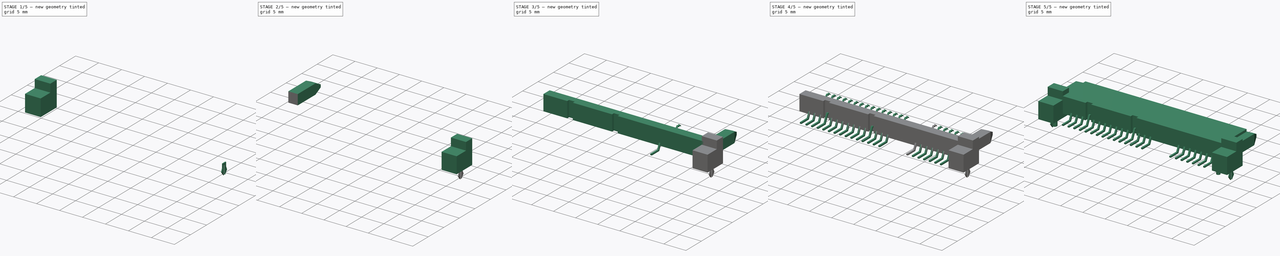
[diagram: build sequence overview — one tinted view per stage of 5, left to right]
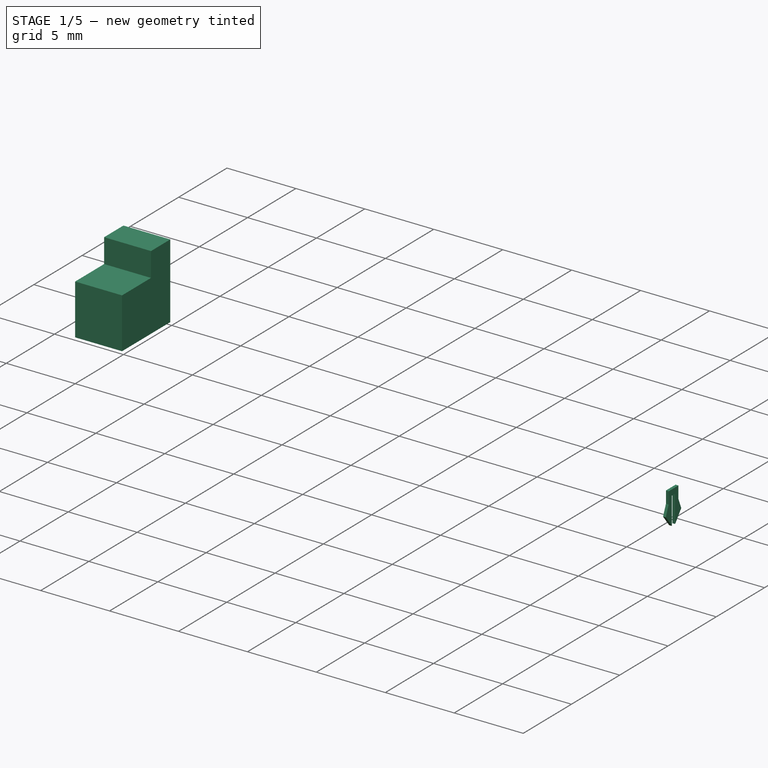
[diagram: stage 1 of 5 — iso view after this stage's code; geometry added in this stage tinted green]
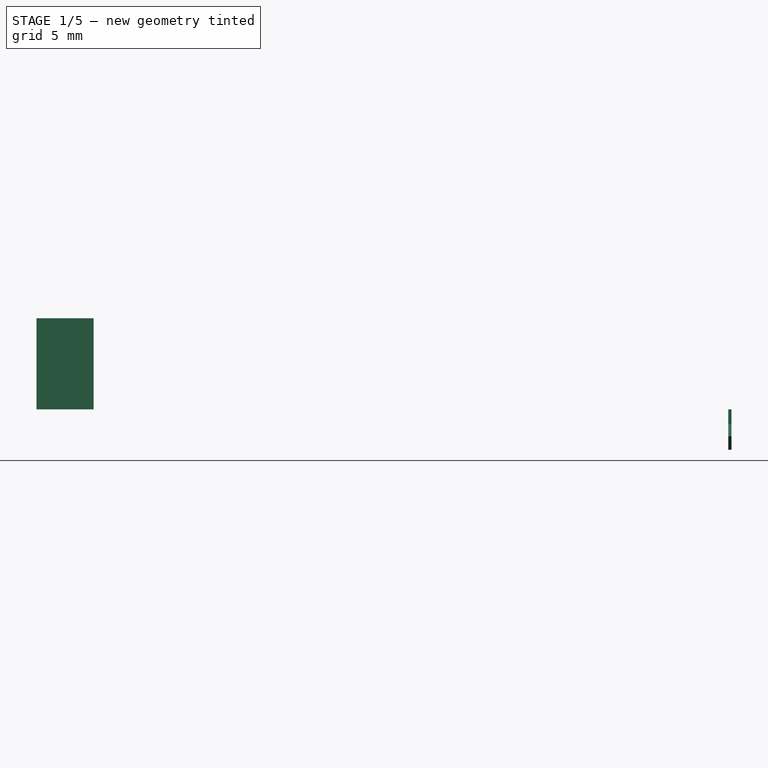
[diagram: stage 1 of 5 — front view after this stage's code; geometry added in this stage tinted green]
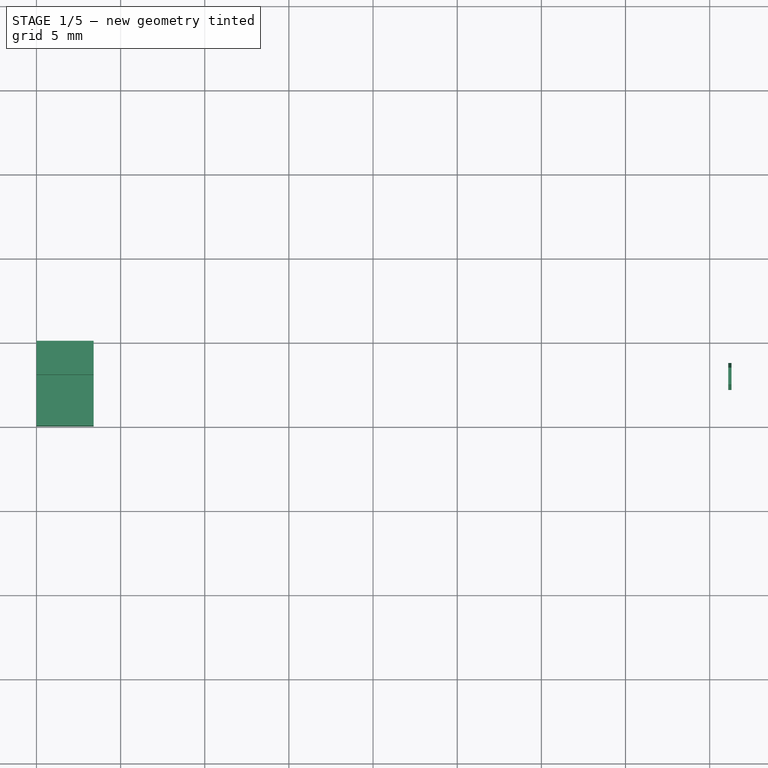
[diagram: stage 1 of 5 — top view after this stage's code; geometry added in this stage tinted green]
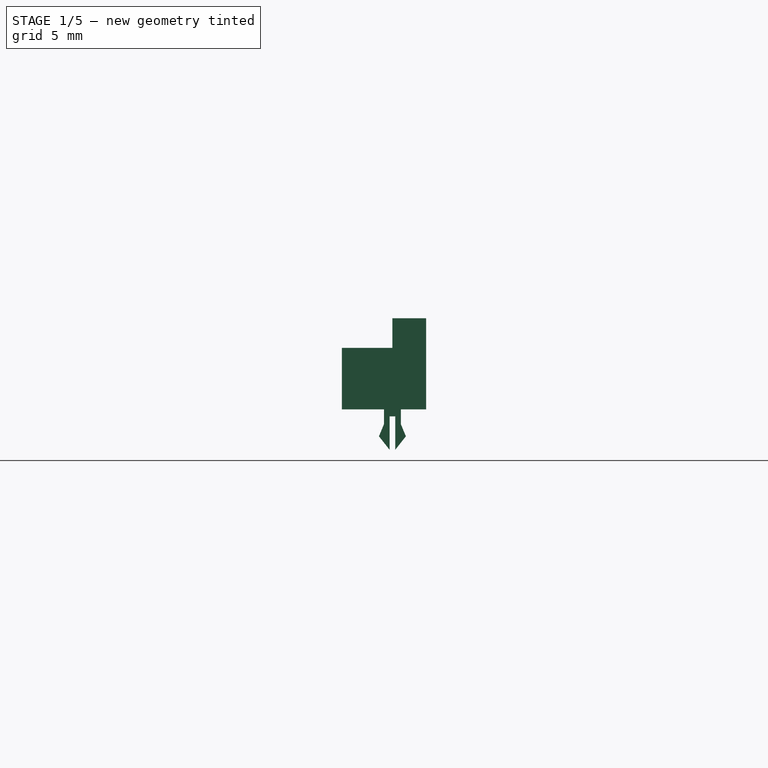
[diagram: stage 1 of 5 — right view after this stage's code; geometry added in this stage tinted green]
FCSTD DOCUMENT  (FreeCAD 0.15R4671 (Git))
Label: SATA_Amphenol_10029364-001LF_Horizontal
License: All rights reserved
LicenseURL: http://en.wikipedia.org/wiki/All_rights_reserved
objects: Sketcher::SketchObject×12, PartDesign::Pad×8, PartDesign::Pocket×4, Part::Mirroring×3, Part::FeaturePython×2, Part::MultiFuse×1
note: 42 computed .brp shape members not serialized (recipe doc carries the construction recipe); baked Part::Feature solids carry a one-line shape summary decoded from their .brp

FEATURE [Sketcher::SketchObject] Sketch003
  Placement = pos=(0,0,0) rot=(1,0,0;1.5708rad)
  sketch-geometry (4):
    g0: LineSegment StartX=0 StartY=0 StartZ=0 EndX=3.4 EndY=0 EndZ=0
    g1: LineSegment StartX=3.4 StartY=0 StartZ=0 EndX=3.4 EndY=5.42 EndZ=0
    g2: LineSegment StartX=3.4 StartY=5.42 StartZ=0 EndX=0 EndY=5.42 EndZ=0
    g3: LineSegment StartX=0 StartY=5.42 StartZ=0 EndX=0 EndY=0 EndZ=0
  constraints (11):
    c: Coincident(g0,g1)
    c: Coincident(g1,g2)
    c: Coincident(g2,g3)
    c: Coincident(g3,g0)
    c: Horizontal(g0)
    c: Horizontal(g2)
    c: Vertical(g1)
    c: Vertical(g3)
    c: Coincident(g0,g-1)
    c: Distance(g3) = 5.42
    c: Distance(g2) = 3.4
FEATURE [PartDesign::Pad] Pad002
  Length = 5
  Length2 = 100
  Placement = pos=(0,0,0) rot=(1,0,0;1.5708rad)
  Sketch = -> Sketch003
  Type = 0
FEATURE [Sketcher::SketchObject] Sketch004
  Placement = pos=(0,-5,0) rot=(1,0,0;1.5708rad)
  Support = -> Pad002 [Face6]
  sketch-geometry (4):
    g0: LineSegment StartX=0 StartY=5.42 StartZ=0 EndX=3.4 EndY=5.42 EndZ=0
    g1: LineSegment StartX=3.4 StartY=5.42 StartZ=0 EndX=3.4 EndY=3.66 EndZ=0
    g2: LineSegment StartX=3.4 StartY=3.66 StartZ=0 EndX=0 EndY=3.66 EndZ=0
    g3: LineSegment StartX=0 StartY=3.66 StartZ=0 EndX=0 EndY=5.42 EndZ=0
  constraints (12):
    c: Coincident(g0,g1)
    c: Coincident(g1,g2)
    c: Coincident(g2,g3)
    c: Coincident(g3,g0)
    c: Horizontal(g0)
    c: Horizontal(g2)
    c: Vertical(g1)
    c: Vertical(g3)
    c: PointOnObject(g0,g-2)
    c: Distance(g3) = 1.76
    c: Distance(g0) = 3.4
    c: DistanceY(g-1,g0) = 5.42
FEATURE [PartDesign::Pocket] Pocket001
  Length = 3
  Placement = pos=(0,0,0) rot=(1,0,0;1.5708rad)
  Sketch = -> Sketch004
  Type = 0
FEATURE [Sketcher::SketchObject] Sketch008
  Placement = pos=(1.2,0,0) rot=(0.57735,0.57735,0.57735;2.0944rad)
  sketch-geometry (12):
    g0: LineSegment StartX=-2.5 StartY=0 StartZ=0 EndX=-2.5 EndY=-0.873557 EndZ=0
    g1: LineSegment StartX=-2.5 StartY=-0.873557 StartZ=0 EndX=-2.8 EndY=-1.59756 EndZ=0
    g2: LineSegment StartX=-2.8 StartY=-1.59756 StartZ=0 EndX=-2.16667 EndY=-2.4 EndZ=0
    g3: LineSegment StartX=-2.16667 StartY=-2.4 StartZ=0 EndX=-2.16667 EndY=-0.415514 EndZ=0
    g4: LineSegment StartX=-2.16667 StartY=-0.415514 StartZ=0 EndX=-1.83333 EndY=-0.415514 EndZ=0
    g5: LineSegment StartX=-1.83333 StartY=-0.415514 StartZ=0 EndX=-1.83333 EndY=-2.4 EndZ=0
    g6: LineSegment StartX=-1.83333 StartY=-2.4 StartZ=0 EndX=-1.2 EndY=-1.59756 EndZ=0
    g7: LineSegment StartX=-1.2 StartY=-1.59756 StartZ=0 EndX=-1.5 EndY=-0.873557 EndZ=0
    g8: LineSegment StartX=-1.5 StartY=-0.873557 StartZ=0 EndX=-1.5 EndY=0 EndZ=0
    g9: LineSegment StartX=-1.5 StartY=0 StartZ=0 EndX=-2.5 EndY=0 EndZ=0
    g10: LineSegment [constr] StartX=-2.16667 StartY=-0.415514 StartZ=0 EndX=-2.5 EndY=-0.415514 EndZ=0
    g11: LineSegment [constr] StartX=-1.83333 StartY=-0.415514 StartZ=0 EndX=-1.5 EndY=-0.415514 EndZ=0
  constraints (33):
    c: PointOnObject(g0,g-1)
    c: Vertical(g0)
    c: Coincident(g0,g1)
    c: Coincident(g1,g2)
    c: Coincident(g2,g3)
    c: Vertical(g3)
    c: Coincident(g3,g4)
    c: Horizontal(g4)
    c: Coincident(g4,g5)
    c: Vertical(g5)
    c: Coincident(g5,g6)
    c: Coincident(g6,g7)
    c: Coincident(g7,g8)
    c: PointOnObject(g8,g-1)
    c: Vertical(g8)
    c: Coincident(g8,g9)
    c: Coincident(g9,g0)
    c: Equal(g1,g7)
    c: Equal(g6,g2)
    c: Equal(g0,g8)
    c: Equal(g3,g5)
    c: Distance(g1,g6) = 1.6
    c: DistanceY(g-1,g5) = -2.4
    c: Coincident(g10,g3)
    c: PointOnObject(g10,g0)
    c: Horizontal(g10)
    c: Coincident(g11,g4)
    c: PointOnObject(g11,g8)
    c: Horizontal(g11)
    c: Equal(g10,g11)
    c: Equal(g4,g10)
    c: Distance(g9) = 1
    c: DistanceX(g-2,g8) = -1.5
FEATURE [PartDesign::Pad] Pad006
  Length = 0.2
  Length2 = 100
  Midplane = true
  Placement = pos=(1.2,0,0) rot=(0.57735,0.57735,0.57735;2.0944rad)
  Sketch = -> Sketch008
  Type = 0
FEATURE [Part::Mirroring] Part__Mirroring002  label="Pad006 (Mirror #3)"
  Base = (21.2,0,0)
  Normal = (1,0,0)
  Source = -> Pad006
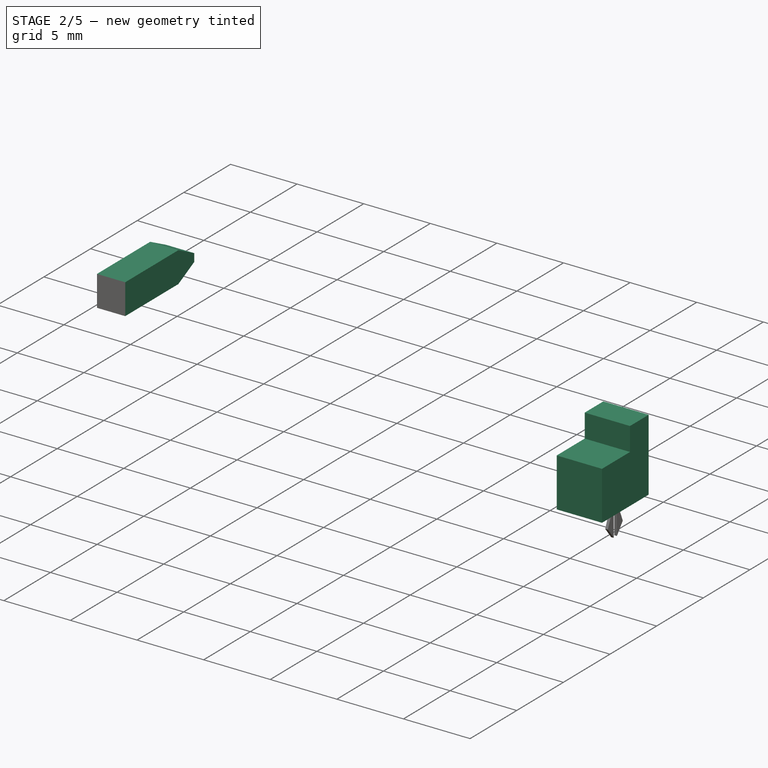
[diagram: stage 2 of 5 — iso view after this stage's code; geometry added in this stage tinted green]
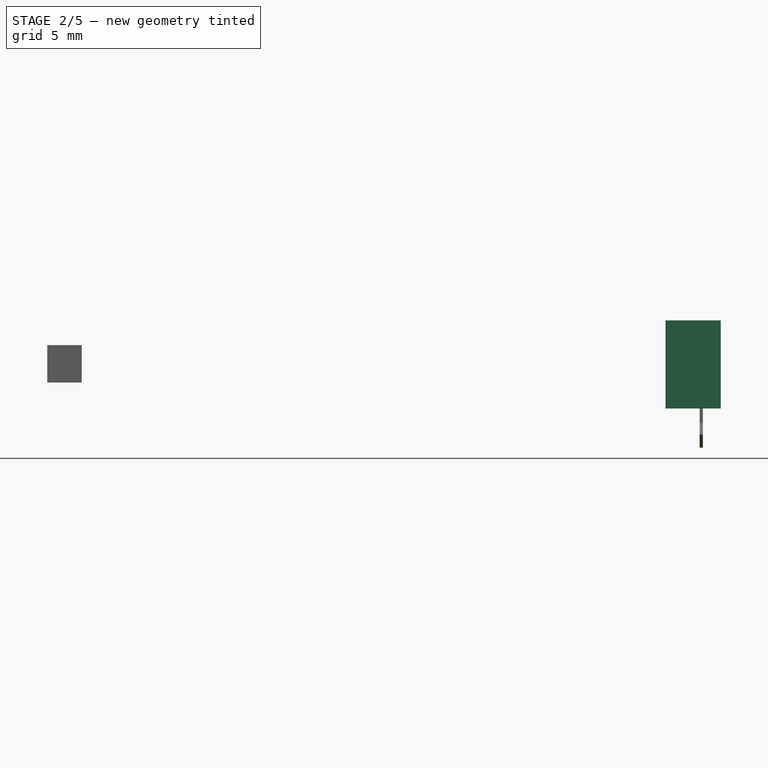
[diagram: stage 2 of 5 — front view after this stage's code; geometry added in this stage tinted green]
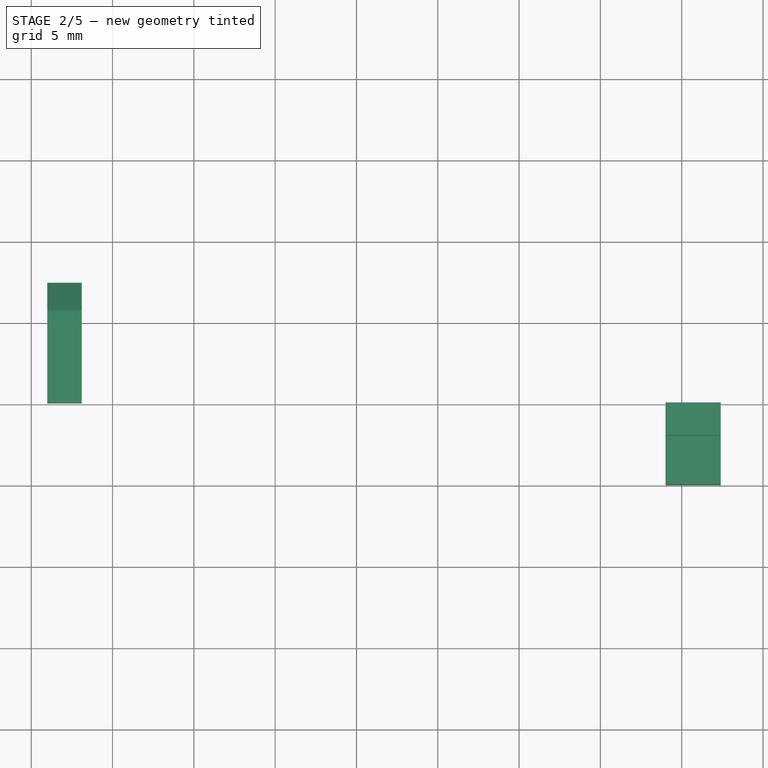
[diagram: stage 2 of 5 — top view after this stage's code; geometry added in this stage tinted green]
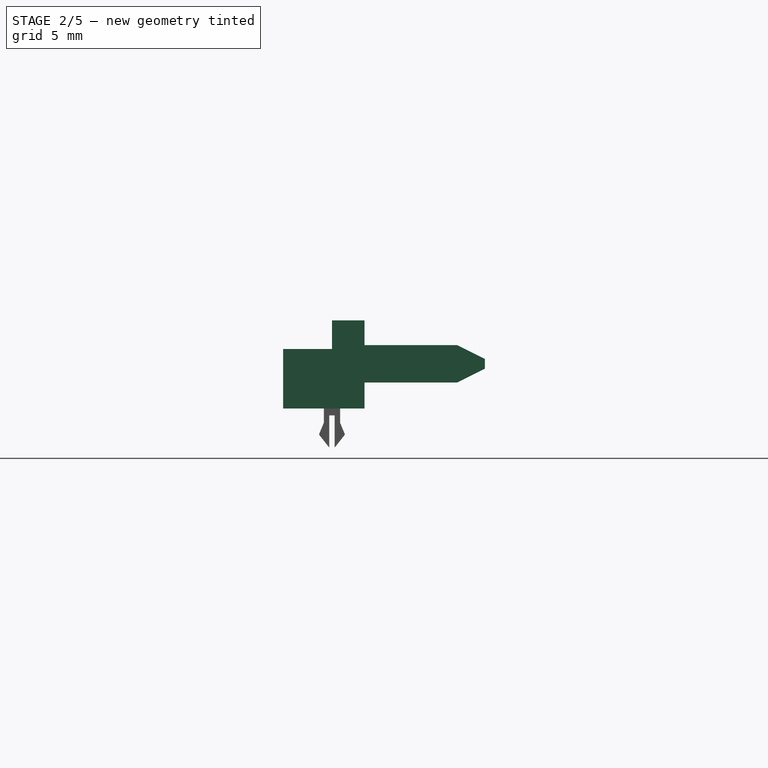
[diagram: stage 2 of 5 — right view after this stage's code; geometry added in this stage tinted green]
FEATURE [Sketcher::SketchObject] Sketch002
  Placement = pos=(0,0,0) rot=(1,0,0;1.5708rad)
  sketch-geometry (4):
    g0: LineSegment StartX=0.985 StartY=3.9 StartZ=0 EndX=3.105 EndY=3.9 EndZ=0
    g1: LineSegment StartX=3.105 StartY=3.9 StartZ=0 EndX=3.105 EndY=1.6 EndZ=0
    g2: LineSegment StartX=3.105 StartY=1.6 StartZ=0 EndX=0.985 EndY=1.6 EndZ=0
    g3: LineSegment StartX=0.985 StartY=1.6 StartZ=0 EndX=0.985 EndY=3.9 EndZ=0
  constraints (12):
    c: Coincident(g0,g1)
    c: Coincident(g1,g2)
    c: Coincident(g2,g3)
    c: Coincident(g3,g0)
    c: Horizontal(g0)
    c: Horizontal(g2)
    c: Vertical(g1)
    c: Vertical(g3)
    c: Distance(g3) = 2.3
    c: DistanceY(g-1,g2) = 1.6
    c: Distance(g2) = 2.12
    c: DistanceX(g-2,g0) = 0.985
FEATURE [PartDesign::Pad] Pad001
  Length = 7.4
  Length2 = 100
  Placement = pos=(0,0,0) rot=(1,0,0;1.5708rad)
  Reversed = true
  Sketch = -> Sketch002
  Type = 0
FEATURE [Sketcher::SketchObject] Sketch010
  Placement = pos=(3.105,0,0) rot=(0.707107,0,0.707107;3.14159rad)
  Support = -> Pad001 [Face2]
  sketch-geometry (6):
    g0: LineSegment StartX=1.6 StartY=-5.7 StartZ=0 EndX=1.6 EndY=-7.4 EndZ=0
    g1: LineSegment StartX=1.6 StartY=-7.4 StartZ=0 EndX=2.45 EndY=-7.4 EndZ=0
    g2: LineSegment StartX=2.45 StartY=-7.4 StartZ=0 EndX=1.6 EndY=-5.7 EndZ=0
    g3: LineSegment StartX=3.05 StartY=-7.4 StartZ=0 EndX=3.9 EndY=-7.4 EndZ=0
    g4: LineSegment StartX=3.9 StartY=-7.4 StartZ=0 EndX=3.9 EndY=-5.7 EndZ=0
    g5: LineSegment StartX=3.9 StartY=-5.7 StartZ=0 EndX=3.05 EndY=-7.4 EndZ=0
  constraints (18):
    c: Vertical(g0)
    c: Coincident(g0,g1)
    c: Horizontal(g1)
    c: Coincident(g1,g2)
    c: Coincident(g2,g0)
    c: Horizontal(g3)
    c: Coincident(g3,g4)
    c: Vertical(g4)
    c: Coincident(g4,g5)
    c: Coincident(g5,g3)
    c: Equal(g0,g4)
    c: Equal(g1,g3)
    c: DistanceY(g-1,g0) = -5.7
    c: DistanceY(g-1,g4) = -5.7
    c: Distance(g0,g4) = 2.3
    c: DistanceX(g-2,g0) = 1.6
    c: Distance(g1,g3) = 0.6
    c: Distance(g0) = 1.7
FEATURE [PartDesign::Pocket] Pocket002
  Length = 3
  Placement = pos=(0,0,0) rot=(1,0,0;1.5708rad)
  Sketch = -> Sketch010
  Type = 0
FEATURE [Part::Mirroring] Part__Mirroring001  label="Pocket001 (Mirror #2)"
  Base = (21.2,0,0)
  Normal = (1,0,0)
  Source = -> Pocket001
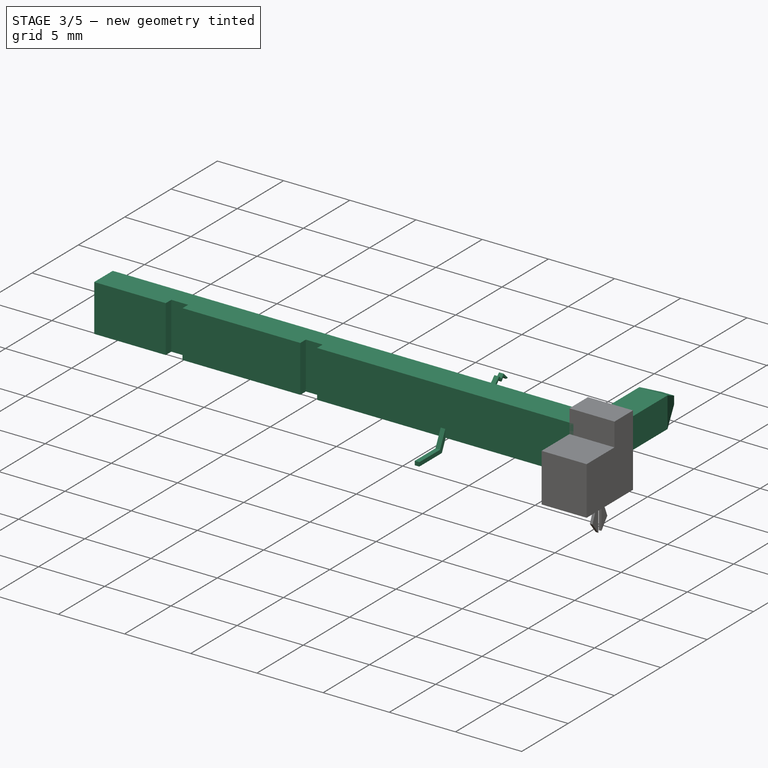
[diagram: stage 3 of 5 — iso view after this stage's code; geometry added in this stage tinted green]
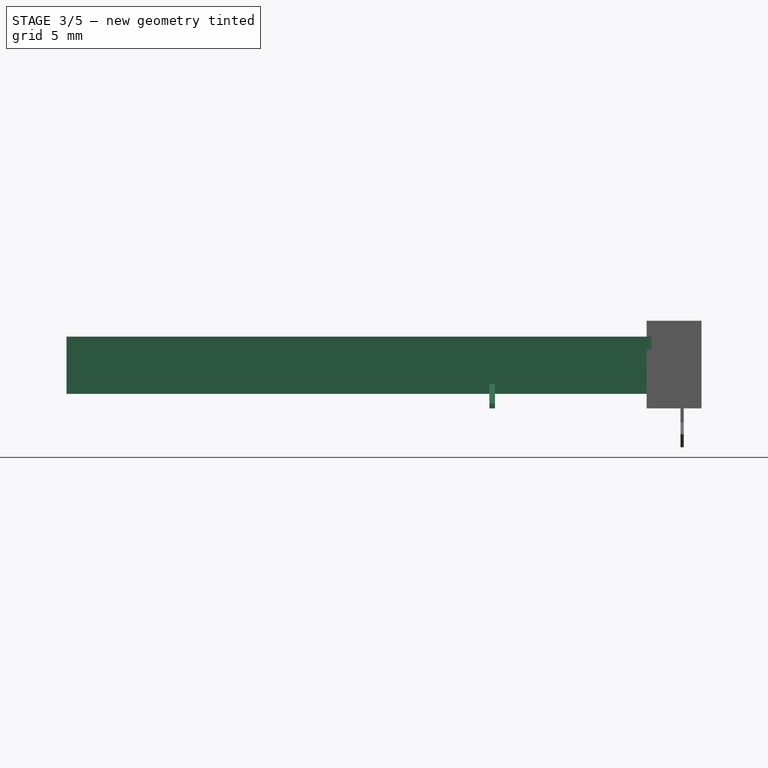
[diagram: stage 3 of 5 — front view after this stage's code; geometry added in this stage tinted green]
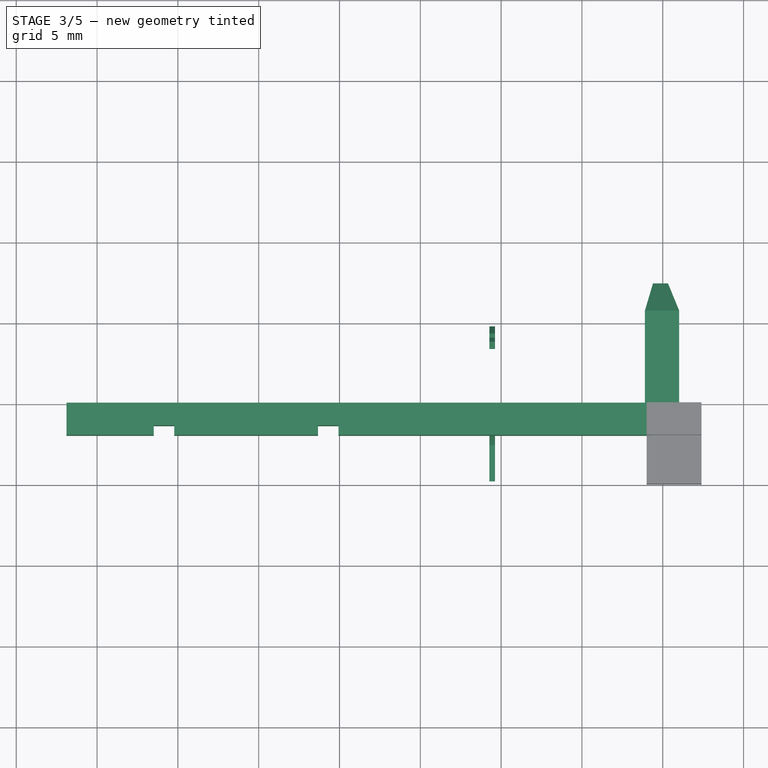
[diagram: stage 3 of 5 — top view after this stage's code; geometry added in this stage tinted green]
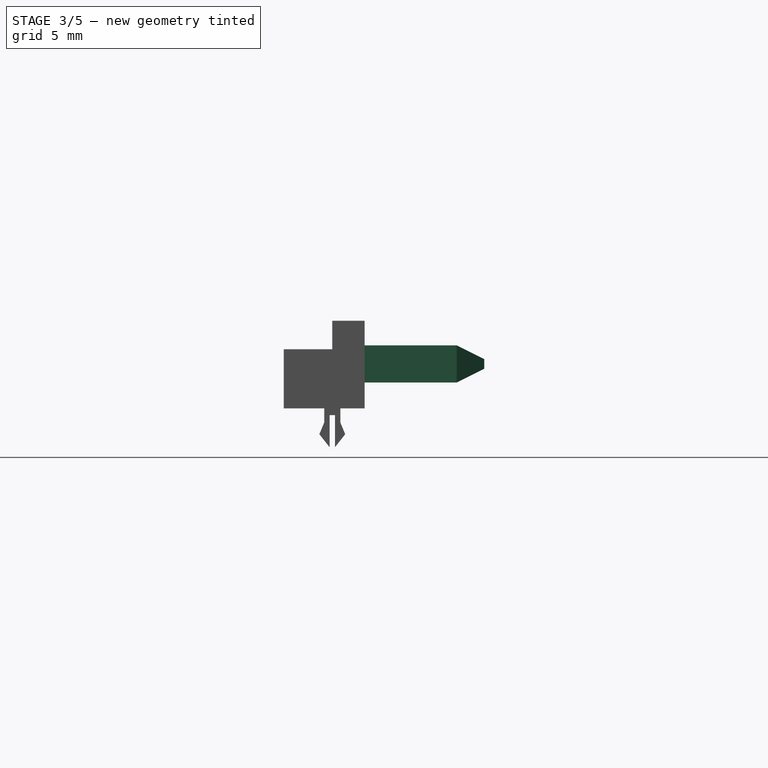
[diagram: stage 3 of 5 — right view after this stage's code; geometry added in this stage tinted green]
FEATURE [Sketcher::SketchObject] Sketch007
  Placement = pos=(29.449,0,0) rot=(0.57735,0.57735,0.57735;2.0944rad)
  sketch-geometry (23):
    g0: LineSegment StartX=-4.8 StartY=0 StartZ=0 EndX=-2.37041 EndY=0 EndZ=0
    g1: LineSegment StartX=-2.37041 StartY=0 StartZ=0 EndX=-1.5565 EndY=1.74544 EndZ=0
    g2: LineSegment StartX=-1.5565 StartY=1.74544 StartZ=0 EndX=0 EndY=1.74544 EndZ=0
    g3: LineSegment StartX=0 StartY=1.74544 StartZ=0 EndX=0 EndY=2.04544 EndZ=0
    g4: LineSegment StartX=0 StartY=2.04544 StartZ=0 EndX=-1.74763 EndY=2.04544 EndZ=0
    g5: LineSegment StartX=-1.74763 StartY=2.04544 StartZ=0 EndX=-2.56154 EndY=0.3 EndZ=0
    g6: LineSegment StartX=-2.56154 StartY=0.3 StartZ=0 EndX=-4.8 EndY=0.3 EndZ=0
    g7: LineSegment StartX=-4.8 StartY=0.3 StartZ=0 EndX=-4.8 EndY=0 EndZ=0
    g8: LineSegment [constr] StartX=-2.26314 StartY=0.939912 StartZ=0 EndX=-1.99125 EndY=0.813126 EndZ=0
    g9: LineSegment [constr] StartX=-2.06358 StartY=1.36786 StartZ=0 EndX=-1.79169 EndY=1.24108 EndZ=0
    g10: LineSegment [constr] StartX=0 StartY=2.42 StartZ=0 EndX=7.4 EndY=2.42 EndZ=0
    g11: LineSegment StartX=3.35 StartY=2.42 StartZ=0 EndX=3.55 EndY=2.42 EndZ=0
    g12: LineSegment StartX=3.55 StartY=2.42 StartZ=0 EndX=3.8 EndY=2.67 EndZ=0
    g13: LineSegment StartX=3.8 StartY=2.67 StartZ=0 EndX=4.05 EndY=2.42 EndZ=0
    g14: LineSegment StartX=4.05 StartY=2.42 StartZ=0 EndX=4.3 EndY=2.67 EndZ=0
    g15: LineSegment StartX=4.3 StartY=2.67 StartZ=0 EndX=4.55 EndY=2.42 EndZ=0
    g16: LineSegment StartX=4.55 StartY=2.42 StartZ=0 EndX=4.75 EndY=2.42 EndZ=0
    g17: LineSegment StartX=4.75 StartY=2.42 StartZ=0 EndX=4.3 EndY=2.87 EndZ=0
    g18: LineSegment StartX=4.3 StartY=2.87 StartZ=0 EndX=4.05 EndY=2.62 EndZ=0
    g19: LineSegment StartX=4.05 StartY=2.62 StartZ=0 EndX=3.8 EndY=2.87 EndZ=0
    g20: LineSegment StartX=3.8 StartY=2.87 StartZ=0 EndX=3.35 EndY=2.42 EndZ=0
    g21: LineSegment [constr] StartX=3.8 StartY=2.67 StartZ=0 EndX=3.8 EndY=2.42 EndZ=0
    g22: LineSegment [constr] StartX=4.3 StartY=2.67 StartZ=0 EndX=4.3 EndY=2.42 EndZ=0
  constraints (68):
    c: PointOnObject(g0,g-1)
    c: PointOnObject(g0,g-1)
    c: Coincident(g0,g1)
    c: Coincident(g1,g2)
    c: Horizontal(g2)
    c: Coincident(g2,g3)
    c: Vertical(g3)
    c: Coincident(g3,g4)
    c: Horizontal(g4)
    c: Coincident(g4,g5)
    c: Coincident(g5,g6)
    c: Horizontal(g6)
    c: Coincident(g6,g7)
    c: Coincident(g7,g0)
    c: Vertical(g7)
    c: PointOnObject(g8,g5)
    c: PointOnObject(g8,g1)
    c: Perpendicular(g5,g8)
    c: Equal(g8,g3)
    c: Equal(g3,g7)
    c: PointOnObject(g9,g5)
    c: PointOnObject(g9,g1)
    c: Perpendicular(g9,g5)
    c: Equal(g9,g8)
    c: PointOnObject(g2,g-2)
    c: Distance(g3) = 0.3
    c: Angle(g1,g-1) = 2.00713
    c: Distance(g-1,g0) = 4.8
    c: PointOnObject(g10,g-2)
    c: Horizontal(g10)
    c: Distance(g10) = 7.4
    c: DistanceY(g-1,g10) = 2.42
    c: PointOnObject(g11,g10)
    c: PointOnObject(g11,g10)
    c: Coincident(g11,g12)
    c: Coincident(g12,g13)
    c: PointOnObject(g13,g10)
    c: Coincident(g13,g14)
    c: Coincident(g14,g15)
    c: PointOnObject(g15,g10)
    c: Coincident(g15,g16)
    c: PointOnObject(g16,g10)
    c: Coincident(g16,g17)
    c: Coincident(g17,g18)
    c: Coincident(g18,g19)
    c: Coincident(g19,g20)
    c: Coincident(g20,g11)
    c: DistanceX(g-2,g17) = 4.3
    c: DistanceX(g-2,g19) = 3.8
    c: Equal(g19,g18)
    c: Equal(g12,g13)
    c: Equal(g13,g14)
    c: Equal(g14,g15)
    c: Coincident(g21,g12)
    c: PointOnObject(g21,g10)
    c: Vertical(g21)
    c: Coincident(g22,g14)
    c: PointOnObject(g22,g10)
    c: Vertical(g22)
    c: Equal(g21,g22)
    c: DistanceX(g-2,g12) = 3.8
    c: DistanceX(g-2,g14) = 4.3
    c: Equal(g11,g16)
    c: Distance(g19,g12) = 0.2
    c: Distance(g17,g14) = 0.2
    c: Distance(g18,g13) = 0.2
    c: Parallel(g20,g12)
    c: Distance(g11) = 0.2
FEATURE [PartDesign::Pad] Pad005
  Length = 0.35
  Length2 = 100
  Midplane = true
  Placement = pos=(29.449,0,0) rot=(0.57735,0.57735,0.57735;2.0944rad)
  Sketch = -> Sketch007
  Type = 0
FEATURE [Sketcher::SketchObject] Sketch009
  Placement = pos=(0,0,0.9) rot=(0,0,1;0rad)
  sketch-geometry (12):
    g0: LineSegment StartX=3.105 StartY=0 StartZ=0 EndX=3.105 EndY=-2 EndZ=0
    g1: LineSegment StartX=3.105 StartY=-2 StartZ=0 EndX=8.508 EndY=-2 EndZ=0
    g2: LineSegment StartX=8.508 StartY=-2 StartZ=0 EndX=8.508 EndY=-1.4 EndZ=0
    g3: LineSegment StartX=8.508 StartY=-1.4 StartZ=0 EndX=9.778 EndY=-1.4 EndZ=0
    g4: LineSegment StartX=9.778 StartY=-1.4 StartZ=0 EndX=9.778 EndY=-2 EndZ=0
    g5: LineSegment StartX=9.778 StartY=-2 StartZ=0 EndX=18.668 EndY=-2 EndZ=0
    g6: LineSegment StartX=18.668 StartY=-2 StartZ=0 EndX=18.668 EndY=-1.4 EndZ=0
    g7: LineSegment StartX=18.668 StartY=-1.4 StartZ=0 EndX=19.938 EndY=-1.4 EndZ=0
    g8: LineSegment StartX=19.938 StartY=-1.4 StartZ=0 EndX=19.938 EndY=-2 EndZ=0
    g9: LineSegment StartX=19.938 StartY=-2 StartZ=0 EndX=39.295 EndY=-2 EndZ=0
    g10: LineSegment StartX=39.295 StartY=-2 StartZ=0 EndX=39.295 EndY=0 EndZ=0
    g11: LineSegment StartX=39.295 StartY=0 StartZ=0 EndX=3.105 EndY=0 EndZ=0
  constraints (36):
    c: PointOnObject(g0,g-1)
    c: Vertical(g0)
    c: Coincident(g0,g1)
    c: Horizontal(g1)
    c: Coincident(g1,g2)
    c: Vertical(g2)
    c: Coincident(g2,g3)
    c: Coincident(g3,g4)
    c: Vertical(g4)
    c: Coincident(g4,g5)
    c: Horizontal(g5)
    c: Coincident(g5,g6)
    c: Vertical(g6)
    c: Coincident(g6,g7)
    c: Horizontal(g7)
    c: Coincident(g7,g8)
    c: Vertical(g8)
    c: Coincident(g8,g9)
    c: Horizontal(g9)
    c: Coincident(g9,g10)
    c: PointOnObject(g10,g-1)
    c: Vertical(g10)
    c: Coincident(g10,g11)
    c: Coincident(g11,g0)
    c: Parallel(g3,g1)
    c: Equal(g2,g4)
    c: Equal(g4,g6)
    c: Equal(g6,g8)
    c: Equal(g3,g7)
    c: Distance(g3) = 1.27
    c: DistanceX(g-2,g0) = 3.105
    c: Distance(g0,g9) = 36.19
    c: DistanceX(g-2,g2) = 8.508
    c: Distance(g3,g7) = 10.16
    c: Distance(g2) = 0.6
    c: Distance(g10) = 2
FEATURE [PartDesign::Pad] Pad007
  Length = 3.54
  Length2 = 100
  Placement = pos=(0,0,0.9) rot=(0,0,1;0rad)
  Sketch = -> Sketch009
  Type = 0
FEATURE [Sketcher::SketchObject] Sketch011
  Placement = pos=(0,0,3.9) rot=(0,0,1;3.14159rad)
  Support = -> Pocket002 [Face1]
  sketch-geometry (6):
    g0: LineSegment StartX=-0.985 StartY=-5.7 StartZ=0 EndX=-0.985 EndY=-7.4 EndZ=0
    g1: LineSegment StartX=-0.985 StartY=-7.4 StartZ=0 EndX=-1.675 EndY=-7.4 EndZ=0
    g2: LineSegment StartX=-1.675 StartY=-7.4 StartZ=0 EndX=-0.985 EndY=-5.7 EndZ=0
    g3: LineSegment StartX=-3.105 StartY=-5.7 StartZ=0 EndX=-3.105 EndY=-7.4 EndZ=0
    g4: LineSegment StartX=-3.105 StartY=-7.4 StartZ=0 EndX=-2.605 EndY=-7.4 EndZ=0
    g5: LineSegment StartX=-2.605 StartY=-7.4 StartZ=0 EndX=-3.105 EndY=-5.7 EndZ=0
  constraints (18):
    c: Vertical(g0)
    c: Coincident(g0,g1)
    c: Horizontal(g1)
    c: Coincident(g1,g2)
    c: Coincident(g2,g0)
    c: Vertical(g3)
    c: Coincident(g3,g4)
    c: Horizontal(g4)
    c: Coincident(g4,g5)
    c: Coincident(g5,g3)
    c: Equal(g0,g3)
    c: DistanceY(g-1,g0) = -5.7
    c: DistanceY(g-1,g3) = -5.7
    c: Distance(g3,g0) = 2.12
    c: DistanceX(g-2,g0) = -0.985
    c: Distance(g0) = 1.7
    c: Distance(g4,g1) = 0.93
    c: Distance(g4) = 0.5
FEATURE [PartDesign::Pocket] Pocket003
  Length = 4
  Placement = pos=(0,0,0) rot=(1,0,0;1.5708rad)
  Sketch = -> Sketch011
  Type = 0
FEATURE [Part::Mirroring] Part__Mirroring  label="Pocket003 (Mirror #1)"
  Base = (21,0,0)
  Normal = (1,0,0)
  Source = -> Pocket003
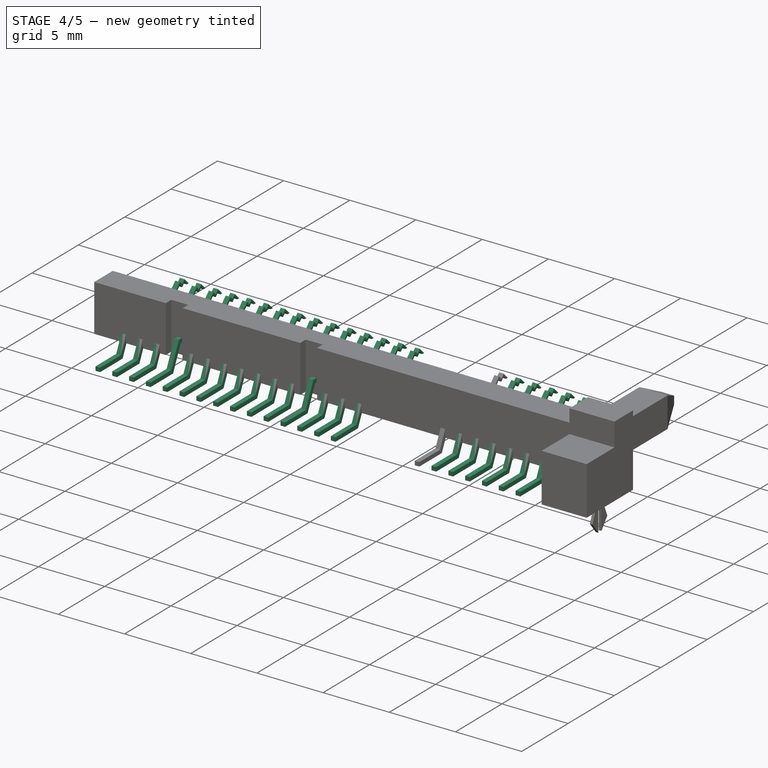
[diagram: stage 4 of 5 — iso view after this stage's code; geometry added in this stage tinted green]
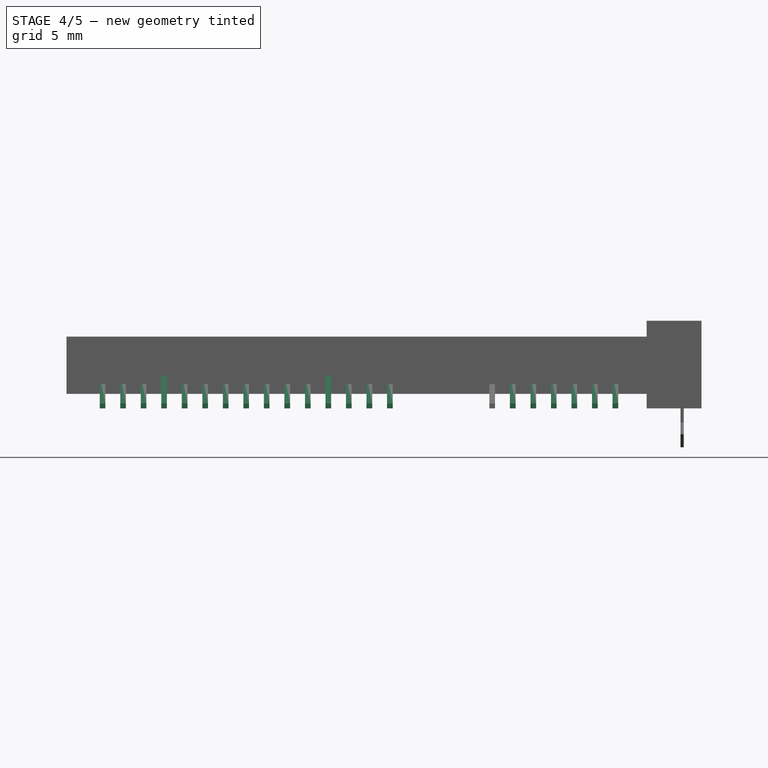
[diagram: stage 4 of 5 — front view after this stage's code; geometry added in this stage tinted green]
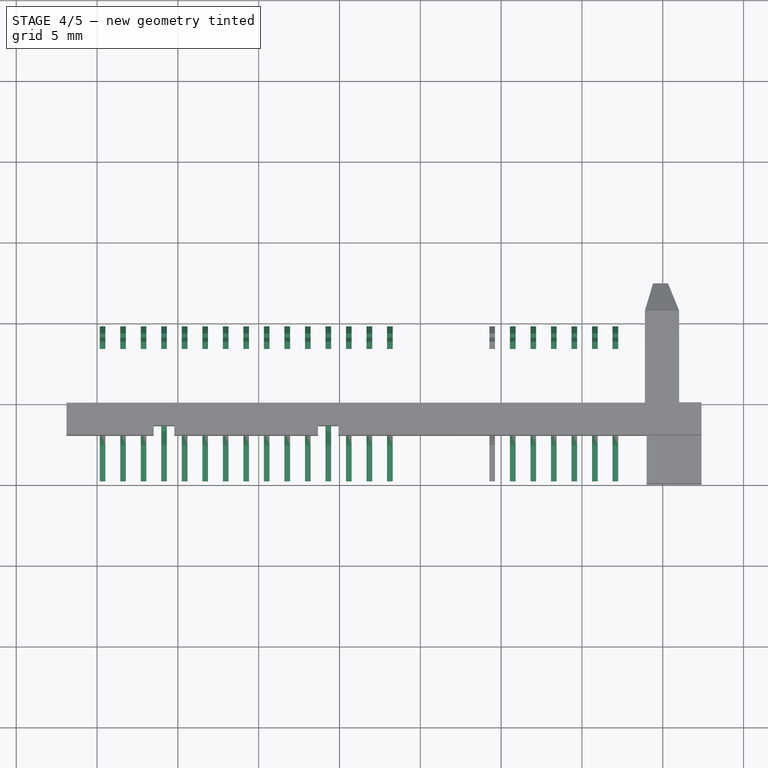
[diagram: stage 4 of 5 — top view after this stage's code; geometry added in this stage tinted green]
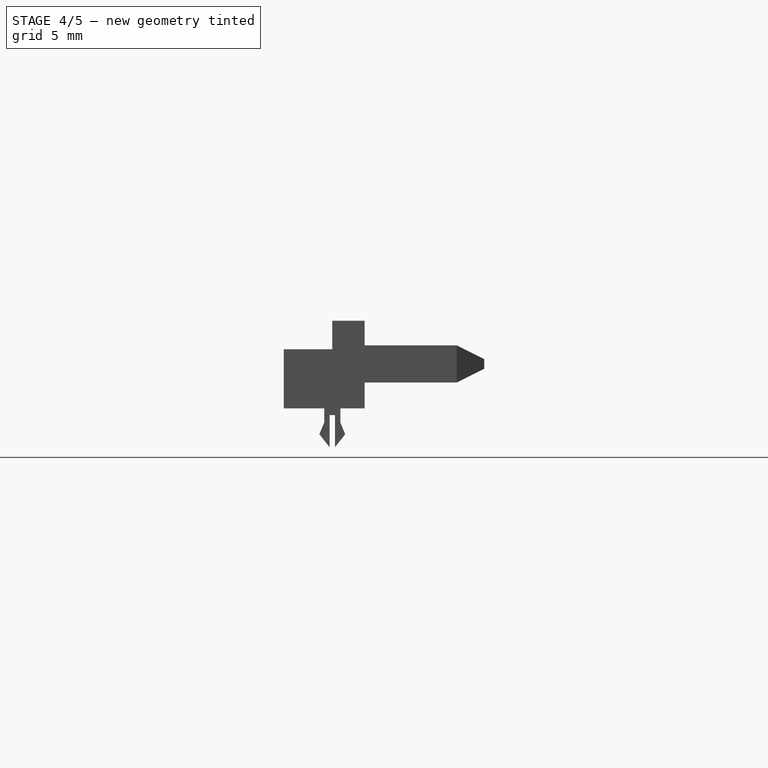
[diagram: stage 4 of 5 — right view after this stage's code; geometry added in this stage tinted green]
FEATURE [Sketcher::SketchObject] Sketch006
  Placement = pos=(5.337,0,0) rot=(0.57735,0.57735,0.57735;2.0944rad)
  sketch-geometry (23):
    g0: LineSegment StartX=-4.8 StartY=0 StartZ=0 EndX=-2.37041 EndY=0 EndZ=0
    g1: LineSegment StartX=-2.37041 StartY=0 StartZ=0 EndX=-1.5565 EndY=1.74544 EndZ=0
    g2: LineSegment StartX=-1.5565 StartY=1.74544 StartZ=0 EndX=0 EndY=1.74544 EndZ=0
    g3: LineSegment StartX=0 StartY=1.74544 StartZ=0 EndX=0 EndY=2.04544 EndZ=0
    g4: LineSegment StartX=0 StartY=2.04544 StartZ=0 EndX=-1.74763 EndY=2.04544 EndZ=0
    g5: LineSegment StartX=-1.74763 StartY=2.04544 StartZ=0 EndX=-2.56154 EndY=0.3 EndZ=0
    g6: LineSegment StartX=-2.56154 StartY=0.3 StartZ=0 EndX=-4.8 EndY=0.3 EndZ=0
    g7: LineSegment StartX=-4.8 StartY=0.3 StartZ=0 EndX=-4.8 EndY=0 EndZ=0
    g8: LineSegment [constr] StartX=-2.26314 StartY=0.939912 StartZ=0 EndX=-1.99125 EndY=0.813126 EndZ=0
    g9: LineSegment [constr] StartX=-2.06358 StartY=1.36786 StartZ=0 EndX=-1.79169 EndY=1.24108 EndZ=0
    g10: LineSegment [constr] StartX=0 StartY=2.42 StartZ=0 EndX=7.4 EndY=2.42 EndZ=0
    g11: LineSegment StartX=3.35 StartY=2.42 StartZ=0 EndX=3.55 EndY=2.42 EndZ=0
    g12: LineSegment StartX=3.55 StartY=2.42 StartZ=0 EndX=3.8 EndY=2.67 EndZ=0
    g13: LineSegment StartX=3.8 StartY=2.67 StartZ=0 EndX=4.05 EndY=2.42 EndZ=0
    g14: LineSegment StartX=4.05 StartY=2.42 StartZ=0 EndX=4.3 EndY=2.67 EndZ=0
    g15: LineSegment StartX=4.3 StartY=2.67 StartZ=0 EndX=4.55 EndY=2.42 EndZ=0
    g16: LineSegment StartX=4.55 StartY=2.42 StartZ=0 EndX=4.75 EndY=2.42 EndZ=0
    g17: LineSegment StartX=4.75 StartY=2.42 StartZ=0 EndX=4.3 EndY=2.87 EndZ=0
    g18: LineSegment StartX=4.3 StartY=2.87 StartZ=0 EndX=4.05 EndY=2.62 EndZ=0
    g19: LineSegment StartX=4.05 StartY=2.62 StartZ=0 EndX=3.8 EndY=2.87 EndZ=0
    g20: LineSegment StartX=3.8 StartY=2.87 StartZ=0 EndX=3.35 EndY=2.42 EndZ=0
    g21: LineSegment [constr] StartX=3.8 StartY=2.67 StartZ=0 EndX=3.8 EndY=2.42 EndZ=0
    g22: LineSegment [constr] StartX=4.3 StartY=2.67 StartZ=0 EndX=4.3 EndY=2.42 EndZ=0
  constraints (68):
    c: PointOnObject(g0,g-1)
    c: PointOnObject(g0,g-1)
    c: Coincident(g0,g1)
    c: Coincident(g1,g2)
    c: Horizontal(g2)
    c: Coincident(g2,g3)
    c: Vertical(g3)
    c: Coincident(g3,g4)
    c: Horizontal(g4)
    c: Coincident(g4,g5)
    c: Coincident(g5,g6)
    c: Horizontal(g6)
    c: Coincident(g6,g7)
    c: Coincident(g7,g0)
    c: Vertical(g7)
    c: PointOnObject(g8,g5)
    c: PointOnObject(g8,g1)
    c: Perpendicular(g5,g8)
    c: Equal(g8,g3)
    c: Equal(g3,g7)
    c: PointOnObject(g9,g5)
    c: PointOnObject(g9,g1)
    c: Perpendicular(g9,g5)
    c: Equal(g9,g8)
    c: PointOnObject(g2,g-2)
    c: Distance(g3) = 0.3
    c: Angle(g1,g-1) = 2.00713
    c: Distance(g-1,g0) = 4.8
    c: PointOnObject(g10,g-2)
    c: Horizontal(g10)
    c: Distance(g10) = 7.4
    c: DistanceY(g-1,g10) = 2.42
    c: PointOnObject(g11,g10)
    c: PointOnObject(g11,g10)
    c: Coincident(g11,g12)
    c: Coincident(g12,g13)
    c: PointOnObject(g13,g10)
    c: Coincident(g13,g14)
    c: Coincident(g14,g15)
    c: PointOnObject(g15,g10)
    c: Coincident(g15,g16)
    c: PointOnObject(g16,g10)
    c: Coincident(g16,g17)
    c: Coincident(g17,g18)
    c: Coincident(g18,g19)
    c: Coincident(g19,g20)
    c: Coincident(g20,g11)
    c: DistanceX(g-2,g17) = 4.3
    c: DistanceX(g-2,g19) = 3.8
    c: Equal(g19,g18)
    c: Equal(g12,g13)
    c: Equal(g13,g14)
    c: Equal(g14,g15)
    c: Coincident(g21,g12)
    c: PointOnObject(g21,g10)
    c: Vertical(g21)
    c: Coincident(g22,g14)
    c: PointOnObject(g22,g10)
    c: Vertical(g22)
    c: Equal(g21,g22)
    c: DistanceX(g-2,g12) = 3.8
    c: DistanceX(g-2,g14) = 4.3
    c: Equal(g11,g16)
    c: Distance(g19,g12) = 0.2
    c: Distance(g17,g14) = 0.2
    c: Distance(g18,g13) = 0.2
    c: Parallel(g20,g12)
    c: Distance(g11) = 0.2
FEATURE [PartDesign::Pad] Pad004
  Length = 0.35
  Length2 = 100
  Midplane = true
  Placement = pos=(5.337,0,0) rot=(0.57735,0.57735,0.57735;2.0944rad)
  Sketch = -> Sketch006
  Type = 0
FEATURE [Part::FeaturePython] Array  # Draft array (typed FeaturePython)
  Angle = 360
  ArrayType = 0
  Axis = (0,0,1)
  Base = -> Pad004
  Center = (0,0,0)
  Fuse = false
  IntervalAxis = (0,0,0)
  IntervalX = (1.27,0,0)
  IntervalY = (0,1,0)
  IntervalZ = (0,0,0)
  NumberPolar = 1
  NumberX = 15
  NumberY = 1
  NumberZ = 1
FEATURE [Part::FeaturePython] Array001  # Draft array (typed FeaturePython)
  Angle = 360
  ArrayType = 0
  Axis = (0,0,1)
  Base = -> Pad005
  Center = (0,0,0)
  Fuse = false
  IntervalAxis = (0,0,0)
  IntervalX = (1.27,0,0)
  IntervalY = (0,1,0)
  IntervalZ = (0,0,0)
  NumberPolar = 1
  NumberX = 7
  NumberY = 1
  NumberZ = 1
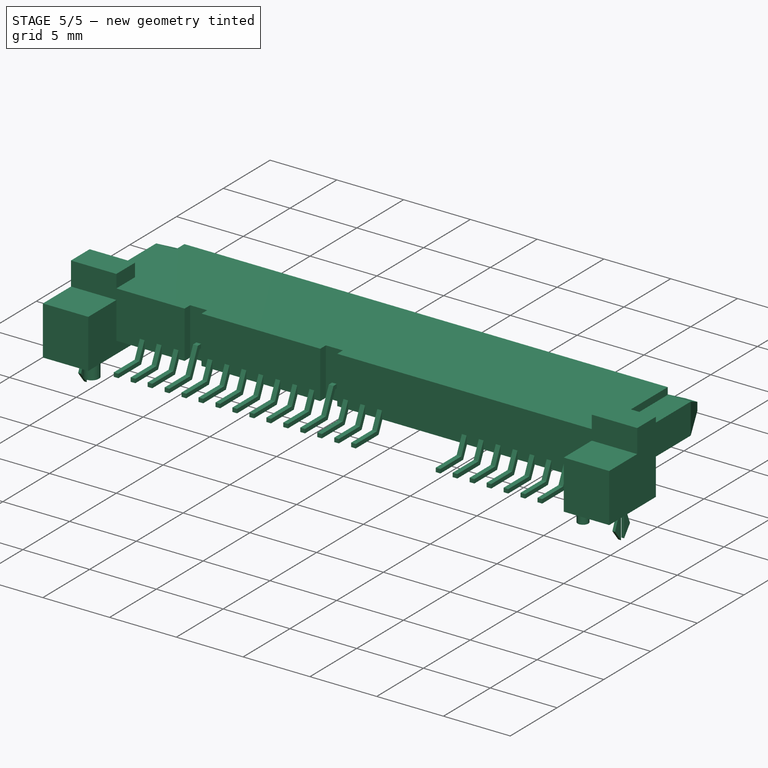
[diagram: stage 5 of 5 — iso view after this stage's code; geometry added in this stage tinted green]
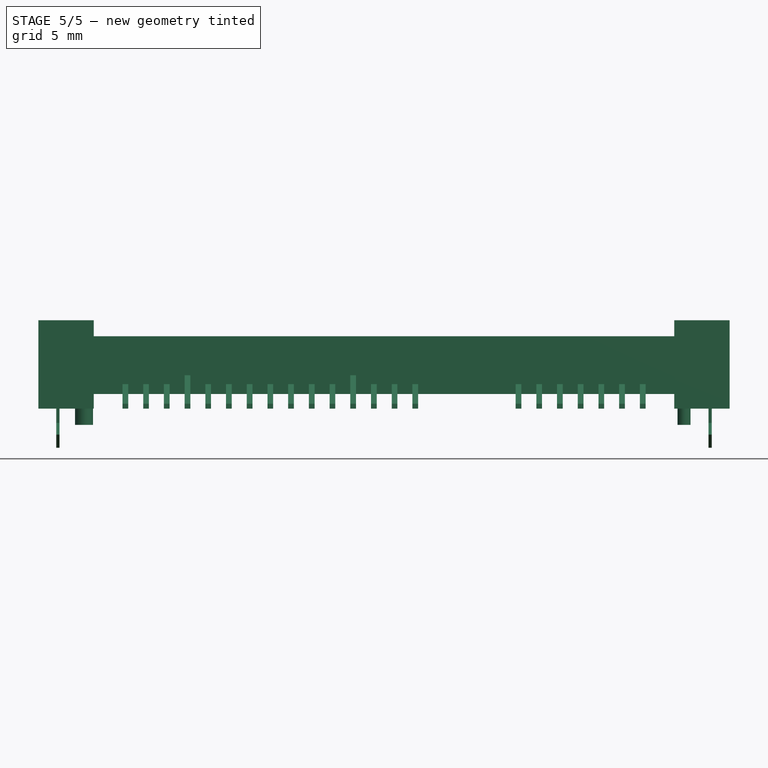
[diagram: stage 5 of 5 — front view after this stage's code; geometry added in this stage tinted green]
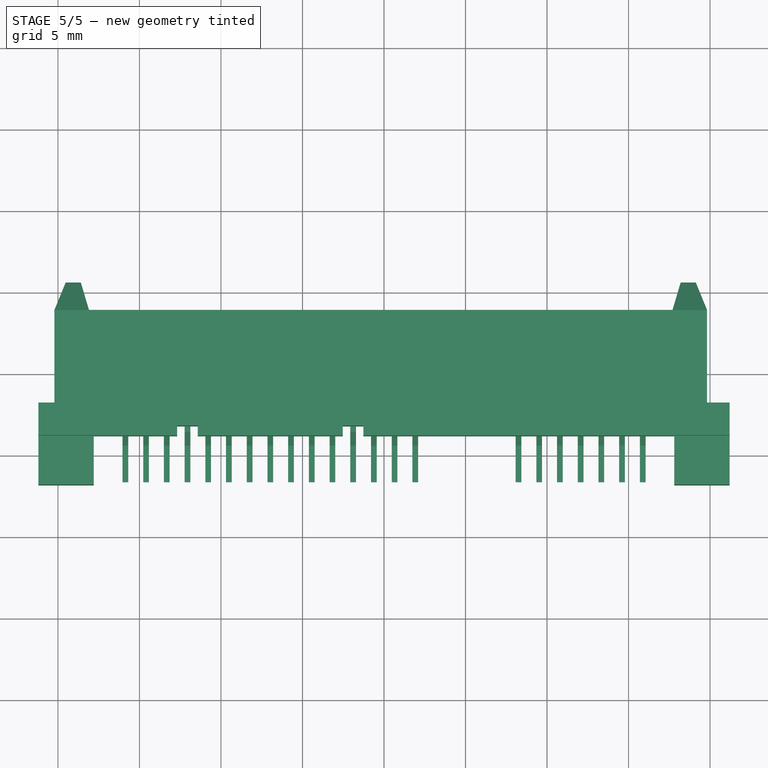
[diagram: stage 5 of 5 — top view after this stage's code; geometry added in this stage tinted green]
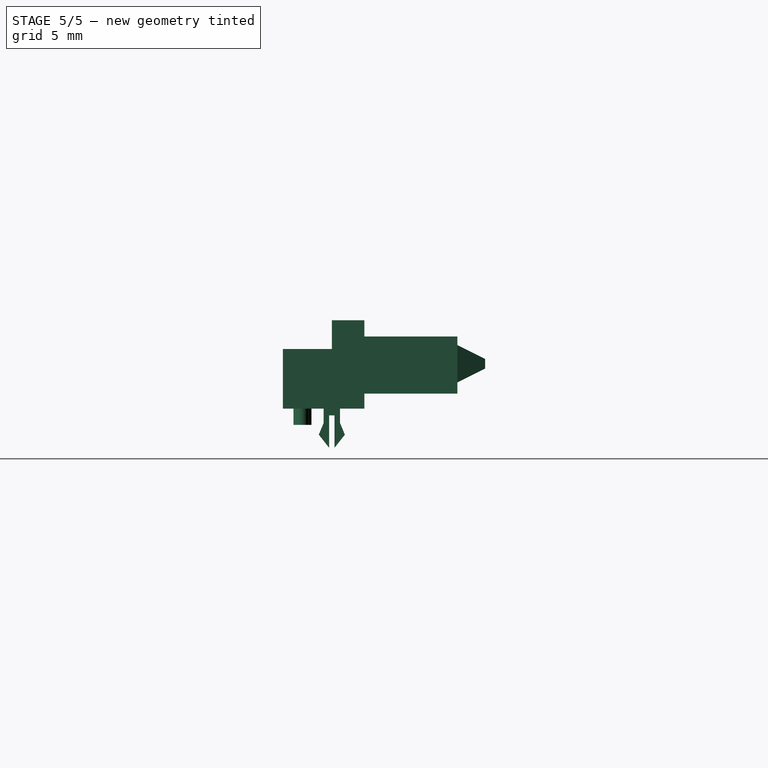
[diagram: stage 5 of 5 — right view after this stage's code; geometry added in this stage tinted green]
FEATURE [Sketcher::SketchObject] Sketch
  Placement = pos=(0,0,0) rot=(1,0,0;1.5708rad)
  sketch-geometry (4):
    g0: LineSegment StartX=3.105 StartY=0.92 StartZ=0 EndX=39.295 EndY=0.92 EndZ=0
    g1: LineSegment StartX=39.295 StartY=0.92 StartZ=0 EndX=39.295 EndY=4.42 EndZ=0
    g2: LineSegment StartX=39.295 StartY=4.42 StartZ=0 EndX=3.105 EndY=4.42 EndZ=0
    g3: LineSegment StartX=3.105 StartY=4.42 StartZ=0 EndX=3.105 EndY=0.92 EndZ=0
  constraints (12):
    c: Coincident(g0,g1)
    c: Coincident(g1,g2)
    c: Coincident(g2,g3)
    c: Coincident(g3,g0)
    c: Horizontal(g0)
    c: Horizontal(g2)
    c: Vertical(g1)
    c: Vertical(g3)
    c: Distance(g3) = 3.5
    c: Distance(g2) = 36.19
    c: DistanceY(g-1,g0) = 0.92
    c: DistanceX(g-2,g2) = 3.105
FEATURE [PartDesign::Pad] Pad
  Length = 5.7
  Length2 = 100
  Placement = pos=(0,0,0) rot=(1,0,0;1.5708rad)
  Reversed = true
  Sketch = -> Sketch
  Type = 0
FEATURE [Sketcher::SketchObject] Sketch001
  Placement = pos=(0,0,0) rot=(1,0,0;1.5708rad)
  Support = -> Pad [Face5]
  sketch-geometry (122):
    g0: LineSegment StartX=38.045 StartY=3.82 StartZ=0 EndX=27.335 EndY=3.82 EndZ=0
    g1: LineSegment StartX=27.335 StartY=3.82 StartZ=0 EndX=27.335 EndY=1.42 EndZ=0
    g2: LineSegment StartX=27.335 StartY=1.42 StartZ=0 EndX=28.785 EndY=1.42 EndZ=0
    g3: LineSegment StartX=28.785 StartY=1.42 StartZ=0 EndX=28.785 EndY=2.42 EndZ=0
    g4: LineSegment StartX=28.785 StartY=2.42 StartZ=0 EndX=38.045 EndY=2.42 EndZ=0
    g5: LineSegment StartX=38.045 StartY=2.42 StartZ=0 EndX=38.045 EndY=3.82 EndZ=0
    g6: LineSegment StartX=25.225 StartY=1.42 StartZ=0 EndX=25.225 EndY=3.82 EndZ=0
    g7: LineSegment StartX=25.225 StartY=3.82 StartZ=0 EndX=4.355 EndY=3.82 EndZ=0
    g8: LineSegment StartX=4.355 StartY=3.82 StartZ=0 EndX=4.355 EndY=2.42 EndZ=0
    g9: LineSegment StartX=4.355 StartY=2.42 StartZ=0 EndX=23.775 EndY=2.42 EndZ=0
    g10: LineSegment StartX=23.775 StartY=2.42 StartZ=0 EndX=23.775 EndY=1.42 EndZ=0
    g11: LineSegment StartX=23.775 StartY=1.42 StartZ=0 EndX=25.225 EndY=1.42 EndZ=0
    g12: LineSegment [constr] StartX=25.225 StartY=1.42 StartZ=0 EndX=25.225 EndY=0 EndZ=0
    g13: LineSegment [constr] StartX=27.335 StartY=1.42 StartZ=0 EndX=27.335 EndY=0 EndZ=0
    g14: LineSegment [constr] StartX=25.225 StartY=3.82 StartZ=0 EndX=27.335 EndY=3.82 EndZ=0
    g15: LineSegment StartX=25.725 StartY=3.82 StartZ=0 EndX=26.835 EndY=3.82 EndZ=0
    g16: LineSegment StartX=26.835 StartY=3.82 StartZ=0 EndX=26.835 EndY=1.42 EndZ=0
    g17: LineSegment StartX=26.835 StartY=1.42 StartZ=0 EndX=25.725 EndY=1.42 EndZ=0
    g18: LineSegment StartX=25.725 StartY=1.42 StartZ=0 EndX=25.725 EndY=3.82 EndZ=0
    g19: LineSegment [constr] StartX=25.225 StartY=1.42 StartZ=0 EndX=25.725 EndY=1.42 EndZ=0
    g20: LineSegment [constr] StartX=26.835 StartY=1.42 StartZ=0 EndX=27.335 EndY=1.42 EndZ=0
    g21: LineSegment StartX=29.2475 StartY=1.42 StartZ=0 EndX=29.6475 EndY=1.42 EndZ=0
    g22: LineSegment StartX=29.6475 StartY=1.42 StartZ=0 EndX=29.6475 EndY=2.12 EndZ=0
    g23: LineSegment StartX=29.6475 StartY=2.12 StartZ=0 EndX=29.2475 EndY=2.12 EndZ=0
    g24: LineSegment StartX=29.2475 StartY=2.12 StartZ=0 EndX=29.2475 EndY=1.42 EndZ=0
    g25: LineSegment [constr] StartX=29.2475 StartY=1.42 StartZ=0 EndX=29.2475 EndY=0 EndZ=0
    g26: LineSegment StartX=30.5175 StartY=2.12 StartZ=0 EndX=30.9175 EndY=2.12 EndZ=0
    g27: LineSegment StartX=30.9175 StartY=2.12 StartZ=0 EndX=30.9175 EndY=1.42 EndZ=0
    g28: LineSegment StartX=30.9175 StartY=1.42 StartZ=0 EndX=30.5175 EndY=1.42 EndZ=0
    g29: LineSegment StartX=30.5175 StartY=1.42 StartZ=0 EndX=30.5175 EndY=2.12 EndZ=0
    g30: LineSegment [constr] StartX=30.9175 StartY=1.42 StartZ=0 EndX=30.9175 EndY=0 EndZ=0
    g31: LineSegment StartX=31.7875 StartY=2.12 StartZ=0 EndX=32.1875 EndY=2.12 EndZ=0
    g32: LineSegment StartX=32.1875 StartY=2.12 StartZ=0 EndX=32.1875 EndY=1.42 EndZ=0
    g33: LineSegment StartX=32.1875 StartY=1.42 StartZ=0 EndX=31.7875 EndY=1.42 EndZ=0
    g34: LineSegment StartX=31.7875 StartY=1.42 StartZ=0 EndX=31.7875 EndY=2.12 EndZ=0
    g35: LineSegment [constr] StartX=31.7875 StartY=1.42 StartZ=0 EndX=31.7875 EndY=0 EndZ=0
    g36: LineSegment StartX=33.0575 StartY=2.12 StartZ=0 EndX=33.4575 EndY=2.12 EndZ=0
    g37: LineSegment StartX=33.4575 StartY=2.12 StartZ=0 EndX=33.4575 EndY=1.42 EndZ=0
    g38: LineSegment StartX=33.4575 StartY=1.42 StartZ=0 EndX=33.0575 EndY=1.42 EndZ=0
    g39: LineSegment StartX=33.0575 StartY=1.42 StartZ=0 EndX=33.0575 EndY=2.12 EndZ=0
    g40: LineSegment [constr] StartX=33.4575 StartY=1.42 StartZ=0 EndX=33.4575 EndY=0 EndZ=0
    g41: LineSegment StartX=34.3275 StartY=2.12 StartZ=0 EndX=34.7275 EndY=2.12 EndZ=0
    g42: LineSegment StartX=34.7275 StartY=2.12 StartZ=0 EndX=34.7275 EndY=1.42 EndZ=0
    g43: LineSegment StartX=34.7275 StartY=1.42 StartZ=0 EndX=34.3275 EndY=1.42 EndZ=0
    g44: LineSegment StartX=34.3275 StartY=1.42 StartZ=0 EndX=34.3275 EndY=2.12 EndZ=0
    g45: LineSegment [constr] StartX=34.3275 StartY=1.42 StartZ=0 EndX=34.3275 EndY=0 EndZ=0
    g46: LineSegment StartX=35.5975 StartY=2.12 StartZ=0 EndX=35.9975 EndY=2.12 EndZ=0
    g47: LineSegment StartX=35.9975 StartY=2.12 StartZ=0 EndX=35.9975 EndY=1.42 EndZ=0
    g48: LineSegment StartX=35.9975 StartY=1.42 StartZ=0 EndX=35.5975 EndY=1.42 EndZ=0
    g49: LineSegment StartX=35.5975 StartY=1.42 StartZ=0 EndX=35.5975 EndY=2.12 EndZ=0
    g50: LineSegment [constr] StartX=35.9975 StartY=1.42 StartZ=0 EndX=35.9975 EndY=0 EndZ=0
    g51: LineSegment StartX=36.8675 StartY=2.12 StartZ=0 EndX=37.2675 EndY=2.12 EndZ=0
    g52: LineSegment StartX=37.2675 StartY=2.12 StartZ=0 EndX=37.2675 EndY=1.42 EndZ=0
    g53: LineSegment StartX=37.2675 StartY=1.42 StartZ=0 EndX=36.8675 EndY=1.42 EndZ=0
    g54: LineSegment StartX=36.8675 StartY=1.42 StartZ=0 EndX=36.8675 EndY=2.12 EndZ=0
    g55: LineSegment [constr] StartX=37.2675 StartY=1.42 StartZ=0 EndX=37.2675 EndY=0 EndZ=0
    g56: LineSegment StartX=23.3125 StartY=1.42 StartZ=0 EndX=22.9125 EndY=1.42 EndZ=0
    g57: LineSegment StartX=22.9125 StartY=1.42 StartZ=0 EndX=22.9125 EndY=2.12 EndZ=0
    g58: LineSegment StartX=22.9125 StartY=2.12 StartZ=0 EndX=23.3125 EndY=2.12 EndZ=0
    g59: LineSegment StartX=23.3125 StartY=2.12 StartZ=0 EndX=23.3125 EndY=1.42 EndZ=0
    g60: LineSegment [constr] StartX=22.9125 StartY=1.42 StartZ=0 EndX=22.9125 EndY=0 EndZ=0
    g61: LineSegment [constr] StartX=23.775 StartY=1.42 StartZ=0 EndX=5.1325 EndY=1.42 EndZ=0
    g62: LineSegment StartX=22.0425 StartY=1.42 StartZ=0 EndX=21.6425 EndY=1.42 EndZ=0
    g63: LineSegment StartX=21.6425 StartY=1.42 StartZ=0 EndX=21.6425 EndY=2.12 EndZ=0
    g64: LineSegment StartX=21.6425 StartY=2.12 StartZ=0 EndX=22.0425 EndY=2.12 EndZ=0
    g65: LineSegment StartX=22.0425 StartY=2.12 StartZ=0 EndX=22.0425 EndY=1.42 EndZ=0
    g66: LineSegment StartX=20.7725 StartY=1.42 StartZ=0 EndX=20.3725 EndY=1.42 EndZ=0
    g67: LineSegment StartX=20.3725 StartY=1.42 StartZ=0 EndX=20.3725 EndY=2.12 EndZ=0
    g68: LineSegment StartX=20.3725 StartY=2.12 StartZ=0 EndX=20.7725 EndY=2.12 EndZ=0
    g69: LineSegment StartX=20.7725 StartY=2.12 StartZ=0 EndX=20.7725 EndY=1.42 EndZ=0
    g70: LineSegment StartX=19.5025 StartY=1.42 StartZ=0 EndX=19.1025 EndY=1.42 EndZ=0
    g71: LineSegment StartX=19.1025 StartY=1.42 StartZ=0 EndX=19.1025 EndY=2.12 EndZ=0
    g72: LineSegment StartX=19.1025 StartY=2.12 StartZ=0 EndX=19.5025 EndY=2.12 EndZ=0
    g73: LineSegment StartX=19.5025 StartY=2.12 StartZ=0 EndX=19.5025 EndY=1.42 EndZ=0
    g74: LineSegment StartX=18.2325 StartY=1.42 StartZ=0 EndX=17.8325 EndY=1.42 EndZ=0
    g75: LineSegment StartX=17.8325 StartY=1.42 StartZ=0 EndX=17.8325 EndY=2.12 EndZ=0
    g76: LineSegment StartX=17.8325 StartY=2.12 StartZ=0 EndX=18.2325 EndY=2.12 EndZ=0
    g77: LineSegment StartX=18.2325 StartY=2.12 StartZ=0 EndX=18.2325 EndY=1.42 EndZ=0
    g78: LineSegment StartX=16.9625 StartY=1.42 StartZ=0 EndX=16.5625 EndY=1.42 EndZ=0
    g79: LineSegment StartX=16.5625 StartY=1.42 StartZ=0 EndX=16.5625 EndY=2.12 EndZ=0
    g80: LineSegment StartX=16.5625 StartY=2.12 StartZ=0 EndX=16.9625 EndY=2.12 EndZ=0
    g81: LineSegment StartX=16.9625 StartY=2.12 StartZ=0 EndX=16.9625 EndY=1.42 EndZ=0
    g82: LineSegment StartX=15.6925 StartY=1.42 StartZ=0 EndX=15.2925 EndY=1.42 EndZ=0
    g83: LineSegment StartX=15.2925 StartY=1.42 StartZ=0 EndX=15.2925 EndY=2.12 EndZ=0
    g84: LineSegment StartX=15.2925 StartY=2.12 StartZ=0 EndX=15.6925 EndY=2.12 EndZ=0
    g85: LineSegment StartX=15.6925 StartY=2.12 StartZ=0 EndX=15.6925 EndY=1.42 EndZ=0
    g86: LineSegment StartX=14.4225 StartY=1.42 StartZ=0 EndX=14.0225 EndY=1.42 EndZ=0
    g87: LineSegment StartX=14.0225 StartY=1.42 StartZ=0 EndX=14.0225 EndY=2.12 EndZ=0
    g88: LineSegment StartX=14.0225 StartY=2.12 StartZ=0 EndX=14.4225 EndY=2.12 EndZ=0
    g89: LineSegment StartX=14.4225 StartY=2.12 StartZ=0 EndX=14.4225 EndY=1.42 EndZ=0
    g90: LineSegment StartX=13.1525 StartY=1.42 StartZ=0 EndX=12.7525 EndY=1.42 EndZ=0
    g91: LineSegment StartX=12.7525 StartY=1.42 StartZ=0 EndX=12.7525 EndY=2.12 EndZ=0
    g92: LineSegment StartX=12.7525 StartY=2.12 StartZ=0 EndX=13.1525 EndY=2.12 EndZ=0
    g93: LineSegment StartX=13.1525 StartY=2.12 StartZ=0 EndX=13.1525 EndY=1.42 EndZ=0
    g94: LineSegment StartX=11.8825 StartY=1.42 StartZ=0 EndX=11.4825 EndY=1.42 EndZ=0
    g95: LineSegment StartX=11.4825 StartY=1.42 StartZ=0 EndX=11.4825 EndY=2.12 EndZ=0
    g96: LineSegment StartX=11.4825 StartY=2.12 StartZ=0 EndX=11.8825 EndY=2.12 EndZ=0
    g97: LineSegment StartX=11.8825 StartY=2.12 StartZ=0 EndX=11.8825 EndY=1.42 EndZ=0
    g98: LineSegment StartX=10.6125 StartY=1.42 StartZ=0 EndX=10.2125 EndY=1.42 EndZ=0
    g99: LineSegment StartX=10.2125 StartY=1.42 StartZ=0 EndX=10.2125 EndY=2.12 EndZ=0
    g100: LineSegment StartX=10.2125 StartY=2.12 StartZ=0 EndX=10.6125 EndY=2.12 EndZ=0
    g101: LineSegment StartX=10.6125 StartY=2.12 StartZ=0 EndX=10.6125 EndY=1.42 EndZ=0
    g102: LineSegment StartX=8.9425 StartY=1.42 StartZ=0 EndX=9.3425 EndY=1.42 EndZ=0
    g103: LineSegment StartX=9.3425 StartY=1.42 StartZ=0 EndX=9.3425 EndY=2.12 EndZ=0
    g104: LineSegment StartX=9.3425 StartY=2.12 StartZ=0 EndX=8.9425 EndY=2.12 EndZ=0
    g105: LineSegment StartX=8.9425 StartY=2.12 StartZ=0 EndX=8.9425 EndY=1.42 EndZ=0
    g106: LineSegment StartX=8.0725 StartY=1.42 StartZ=0 EndX=7.6725 EndY=1.42 EndZ=0
    g107: LineSegment StartX=7.6725 StartY=1.42 StartZ=0 EndX=7.6725 EndY=2.12 EndZ=0
    g108: LineSegment StartX=7.6725 StartY=2.12 StartZ=0 EndX=8.0725 EndY=2.12 EndZ=0
    g109: LineSegment StartX=8.0725 StartY=2.12 StartZ=0 EndX=8.0725 EndY=1.42 EndZ=0
    g110: LineSegment StartX=6.8025 StartY=1.42 StartZ=0 EndX=6.4025 EndY=1.42 EndZ=0
    g111: LineSegment StartX=6.4025 StartY=1.42 StartZ=0 EndX=6.4025 EndY=2.12 EndZ=0
    g112: LineSegment StartX=6.4025 StartY=2.12 StartZ=0 EndX=6.8025 EndY=2.12 EndZ=0
    g113: LineSegment StartX=6.8025 StartY=2.12 StartZ=0 EndX=6.8025 EndY=1.42 EndZ=0
    g114: LineSegment StartX=5.5325 StartY=1.42 StartZ=0 EndX=5.1325 EndY=1.42 EndZ=0
    g115: LineSegment StartX=5.1325 StartY=1.42 StartZ=0 EndX=5.1325 EndY=2.12 EndZ=0
    g116: LineSegment StartX=5.1325 StartY=2.12 StartZ=0 EndX=5.5325 EndY=2.12 EndZ=0
    g117: LineSegment StartX=5.5325 StartY=2.12 StartZ=0 EndX=5.5325 EndY=1.42 EndZ=0
    g118: LineSegment [constr] StartX=4.355 StartY=2.42 StartZ=0 EndX=4.355 EndY=1.42 EndZ=0
    g119: LineSegment [constr] StartX=4.355 StartY=1.42 StartZ=0 EndX=5.1325 EndY=1.42 EndZ=0
    g120: LineSegment [constr] StartX=38.045 StartY=2.42 StartZ=0 EndX=38.045 EndY=0 EndZ=0
    g121: LineSegment [constr] StartX=37.2675 StartY=1.42 StartZ=0 EndX=38.045 EndY=1.42 EndZ=0
  constraints (362):
    c: Horizontal(g0)
    c: Coincident(g0,g1)
    c: Vertical(g1)
    c: Coincident(g1,g2)
    c: Horizontal(g2)
    c: Coincident(g2,g3)
    c: Vertical(g3)
    c: Coincident(g3,g4)
    c: Horizontal(g4)
    c: Coincident(g4,g5)
    c: Coincident(g5,g0)
    c: Vertical(g5)
    c: Vertical(g6)
    c: Coincident(g6,g7)
    c: Horizontal(g7)
    c: Coincident(g7,g8)
    c: Vertical(g8)
    c: Coincident(g8,g9)
    c: Horizontal(g9)
    c: Coincident(g9,g10)
    c: Vertical(g10)
    c: Coincident(g10,g11)
    c: Coincident(g11,g6)
    c: Horizontal(g11)
    c: Equal(g6,g1)
    c: Equal(g8,g5)
    c: Coincident(g12,g6)
    c: PointOnObject(g12,g-1)
    c: Vertical(g12)
    c: Coincident(g13,g1)
    c: PointOnObject(g13,g-1)
    c: Vertical(g13)
    c: Equal(g13,g12)
    c: Coincident(g14,g6)
    c: Coincident(g14,g0)
    c: Distance(g14) = 2.11
    c: Distance(g2) = 1.45
    c: Distance(g7,g0) = 33.69
    c: Equal(g11,g2)
    c: Distance(g6) = 2.4
    c: Distance(g5) = 1.4
    c: DistanceX(g-2,g7) = 4.355
    c: DistanceY(g-1,g7) = 3.82
    c: Coincident(g15,g16)
    c: Coincident(g16,g17)
    c: Coincident(g17,g18)
    c: Coincident(g18,g15)
    c: Horizontal(g15)
    c: Horizontal(g17)
    c: Vertical(g16)
    c: Vertical(g18)
    c: PointOnObject(g15,g14)
    c: Equal(g18,g6)
    c: Coincident(g19,g6)
    c: Coincident(g19,g17)
    c: Coincident(g20,g16)
    c: Coincident(g20,g1)
    c: Equal(g19,g20)
    c: Distance(g17) = 1.11
    c: Coincident(g21,g22)
    c: Coincident(g22,g23)
    c: Coincident(g23,g24)
    c: Coincident(g24,g21)
    c: Horizontal(g21)
    c: Horizontal(g23)
    c: Vertical(g22)
    c: Vertical(g24)
    c: Distance(g21) = 0.4
    c: Coincident(g25,g21)
    c: PointOnObject(g25,g-1)
    c: Vertical(g25)
    c: Equal(g25,g13)
    c: Distance(g2,g21) = 0.4625
    c: Distance(g23,g4) = 0.3
    c: Coincident(g26,g27)
    c: Coincident(g27,g28)
    c: Coincident(g28,g29)
    c: Coincident(g29,g26)
    c: Horizontal(g26)
    c: Horizontal(g28)
    c: Vertical(g27)
    c: Vertical(g29)
    c: Equal(g23,g26)
    c: Equal(g22,g27)
    c: Coincident(g30,g27)
    c: PointOnObject(g30,g-1)
    c: Vertical(g30)
    c: Equal(g25,g30)
    c: Distance(g21,g27) = 1.27
    c: Coincident(g31,g32)
    c: Coincident(g32,g33)
    c: Coincident(g33,g34)
    c: Coincident(g34,g31)
    c: Horizontal(g31)
    c: Horizontal(g33)
    c: Vertical(g32)
    c: Vertical(g34)
    c: Equal(g34,g29)
    c: Equal(g31,g26)
    c: Coincident(g35,g33)
    c: PointOnObject(g35,g-1)
    c: Vertical(g35)
    c: Equal(g35,g30)
    c: Distance(g27,g32) = 1.27
    c: Coincident(g36,g37)
    c: Coincident(g37,g38)
    c: Coincident(g38,g39)
    c: Coincident(g39,g36)
    c: Horizontal(g36)
    c: Horizontal(g38)
    c: Vertical(g37)
    c: Vertical(g39)
    c: Equal(g39,g34)
    c: Equal(g38,g33)
    c: Coincident(g40,g37)
    c: PointOnObject(g40,g-1)
    c: Vertical(g40)
    c: Equal(g40,g35)
    c: Distance(g32,g37) = 1.27
    c: Coincident(g41,g42)
    c: Coincident(g42,g43)
    c: Coincident(g43,g44)
    c: Coincident(g44,g41)
    c: Horizontal(g41)
    c: Horizontal(g43)
    c: Vertical(g42)
    c: Vertical(g44)
    c: Equal(g44,g39)
    c: Equal(g41,g36)
    c: Coincident(g45,g43)
    c: PointOnObject(g45,g-1)
    c: Vertical(g45)
    c: Equal(g45,g40)
    c: Distance(g37,g42) = 1.27
    c: Coincident(g46,g47)
    c: Coincident(g47,g48)
    c: Coincident(g48,g49)
    c: Coincident(g49,g46)
    c: Horizontal(g46)
    c: Horizontal(g48)
    c: Vertical(g47)
    c: Vertical(g49)
    c: Equal(g49,g44)
    c: Equal(g48,g43)
    c: Coincident(g50,g47)
    c: PointOnObject(g50,g-1)
    c: Vertical(g50)
    c: Equal(g50,g45)
    c: Distance(g42,g47) = 1.27
    c: Coincident(g51,g52)
    c: Coincident(g52,g53)
    c: Coincident(g53,g54)
    c: Coincident(g54,g51)
    c: Horizontal(g51)
    c: Horizontal(g53)
    c: Vertical(g52)
    c: Vertical(g54)
    c: Equal(g49,g54)
    c: Equal(g46,g51)
    c: Coincident(g55,g52)
    c: PointOnObject(g55,g-1)
    c: Vertical(g55)
    c: Equal(g55,g50)
    c: Distance(g47,g55) = 1.27
    c: Coincident(g56,g57)
    c: Coincident(g57,g58)
    c: Coincident(g58,g59)
    c: Coincident(g59,g56)
    c: Horizontal(g56)
    c: Horizontal(g58)
    c: Vertical(g57)
    c: Vertical(g59)
    c: Distance(g56) = 0.4
    c: Coincident(g60,g56)
    c: PointOnObject(g60,g-1)
    c: Vertical(g60)
    c: Equal(g60,g12)
    c: Distance(g56,g10) = 0.4625
    c: Distance(g58,g9) = 0.3
    c: Coincident(g61,g10)
    c: Horizontal(g61)
    c: Coincident(g62,g63)
    c: Coincident(g63,g64)
    c: Coincident(g64,g65)
    c: Coincident(g65,g62)
    c: Horizontal(g62)
    c: Horizontal(g64)
    c: Vertical(g63)
    c: Vertical(g65)
    c: PointOnObject(g62,g61)
    c: Equal(g64,g58)
    c: Equal(g65,g57)
    c: Distance(g62,g56) = 1.27
    c: Coincident(g66,g67)
    c: Coincident(g67,g68)
    c: Coincident(g68,g69)
    c: Coincident(g69,g66)
    c: Horizontal(g66)
    c: Horizontal(g68)
    c: Vertical(g67)
    c: Vertical(g69)
    c: PointOnObject(g66,g61)
    c: Equal(g68,g64)
    c: Equal(g69,g65)
    c: Distance(g66,g62) = 1.27
    c: Coincident(g70,g71)
    c: Coincident(g71,g72)
    c: Coincident(g72,g73)
    c: Coincident(g73,g70)
    c: Horizontal(g70)
    c: Horizontal(g72)
    c: Vertical(g71)
    c: Vertical(g73)
    c: PointOnObject(g70,g61)
    c: Equal(g72,g68)
    c: Equal(g73,g69)
    c: Distance(g70,g66) = 1.27
    c: Coincident(g74,g75)
    c: Coincident(g75,g76)
    c: Coincident(g76,g77)
    c: Coincident(g77,g74)
    c: Horizontal(g74)
    c: Horizontal(g76)
    c: Vertical(g75)
    c: Vertical(g77)
    c: PointOnObject(g74,g61)
    c: Equal(g76,g72)
    c: Equal(g77,g73)
    c: Distance(g74,g70) = 1.27
    c: Coincident(g78,g79)
    c: Coincident(g79,g80)
    c: Coincident(g80,g81)
    c: Coincident(g81,g78)
    c: Horizontal(g78)
    c: Horizontal(g80)
    c: Vertical(g79)
    c: Vertical(g81)
    c: PointOnObject(g78,g61)
    c: Equal(g81,g77)
    c: Equal(g80,g76)
    c: Distance(g78,g74) = 1.27
    c: Coincident(g82,g83)
    c: Coincident(g83,g84)
    c: Coincident(g84,g85)
    c: Coincident(g85,g82)
    c: Horizontal(g82)
    c: Horizontal(g84)
    c: Vertical(g83)
    c: Vertical(g85)
    c: PointOnObject(g82,g61)
    c: Coincident(g86,g87)
    c: Coincident(g87,g88)
    c: Coincident(g88,g89)
    c: Coincident(g89,g86)
    c: Horizontal(g86)
    c: Horizontal(g88)
    c: Vertical(g87)
    c: Vertical(g89)
    c: PointOnObject(g86,g61)
    c: Coincident(g90,g91)
    c: Coincident(g91,g92)
    c: Coincident(g92,g93)
    c: Coincident(g93,g90)
    c: Horizontal(g90)
    c: Horizontal(g92)
    c: Vertical(g91)
    c: Vertical(g93)
    c: PointOnObject(g90,g61)
    c: Equal(g84,g88)
    c: Equal(g88,g92)
    c: Equal(g92,g80)
    c: Equal(g85,g89)
    c: Equal(g89,g93)
    c: Equal(g93,g81)
    c: Distance(g82,g78) = 1.27
    c: Distance(g86,g82) = 1.27
    c: Distance(g90,g86) = 1.27
    c: Coincident(g94,g95)
    c: Coincident(g95,g96)
    c: Coincident(g96,g97)
    c: Coincident(g97,g94)
    c: Horizontal(g94)
    c: Horizontal(g96)
    c: Vertical(g95)
    c: Vertical(g97)
    c: PointOnObject(g94,g61)
    c: Coincident(g98,g99)
    c: Coincident(g99,g100)
    c: Coincident(g100,g101)
    c: Coincident(g101,g98)
    c: Horizontal(g98)
    c: Horizontal(g100)
    c: Vertical(g99)
    c: Vertical(g101)
    c: PointOnObject(g98,g61)
    c: Coincident(g102,g103)
    c: Coincident(g103,g104)
    c: Coincident(g104,g105)
    c: Coincident(g105,g102)
    c: Horizontal(g102)
    c: Horizontal(g104)
    c: Vertical(g103)
    c: Vertical(g105)
    c: PointOnObject(g102,g61)
    c: Equal(g97,g101)
    c: Equal(g101,g105)
    c: Equal(g105,g93)
    c: Equal(g96,g100)
    c: Equal(g100,g104)
    c: Equal(g104,g92)
    c: Distance(g94,g90) = 1.27
    c: Distance(g98,g94) = 1.27
    c: Coincident(g106,g107)
    c: Coincident(g107,g108)
    c: Coincident(g108,g109)
    c: Coincident(g109,g106)
    c: Horizontal(g106)
    c: Horizontal(g108)
    c: Vertical(g107)
    c: Vertical(g109)
    c: PointOnObject(g106,g61)
    c: Coincident(g110,g111)
    c: Coincident(g111,g112)
    c: Coincident(g112,g113)
    c: Coincident(g113,g110)
    c: Horizontal(g110)
    c: Horizontal(g112)
    c: Vertical(g111)
    c: Vertical(g113)
    c: PointOnObject(g110,g61)
    c: Coincident(g114,g115)
    c: Coincident(g115,g116)
    c: Coincident(g116,g117)
    c: Coincident(g117,g114)
    c: Horizontal(g114)
    c: Horizontal(g116)
    c: Vertical(g115)
    c: Vertical(g117)
    c: PointOnObject(g114,g61)
    c: Distance(g102,g98) = 1.27
    c: Equal(g108,g112)
    c: Equal(g112,g116)
    c: Equal(g116,g104)
    c: Equal(g109,g113)
    c: Equal(g113,g117)
    c: Equal(g117,g103)
    c: Distance(g106,g102) = 1.27
    c: Distance(g110,g106) = 1.27
    c: Distance(g114,g110) = 1.27
    c: Coincident(g118,g8)
    c: PointOnObject(g118,g61)
    c: Vertical(g118)
    c: Coincident(g119,g118)
    c: Coincident(g119,g114)
    c: PointOnObject(g61,g115)
    c: Coincident(g120,g4)
    c: PointOnObject(g120,g-1)
    c: Vertical(g120)
    c: Coincident(g121,g52)
    c: PointOnObject(g121,g120)
    c: Horizontal(g121)
    c: Equal(g121,g119)
FEATURE [PartDesign::Pocket] Pocket
  Length = 6
  Placement = pos=(0,0,0) rot=(1,0,0;1.5708rad)
  Sketch = -> Sketch001
  Type = 0
FEATURE [Sketcher::SketchObject] Sketch005
  sketch-geometry (2):
    g0: Circle CenterX=2.8 CenterY=-3.8 CenterZ=0 NormalX=0 NormalY=0 NormalZ=1 Radius=0.55
    g1: Circle CenterX=39.6 CenterY=-3.8 CenterZ=0 NormalX=0 NormalY=0 NormalZ=1 Radius=0.4
  constraints (6):
    c: Radius(g0) = 0.55
    c: DistanceX(g-2,g0) = 2.8
    c: DistanceY(g-1,g0) = -3.8
    c: Radius(g1) = 0.4
    c: DistanceY(g-1,g1) = -3.8
    c: Distance(g0,g1) = 36.8
FEATURE [PartDesign::Pad] Pad003
  Length = 1
  Length2 = 100
  Reversed = true
  Sketch = -> Sketch005
  Type = 0
FEATURE [Part::MultiFuse] Fusion  label="SATA_Amphenol_10029364-001LF_Horizontal"
  Placement = pos=(-21.2,3.145,0) rot=(0,0,1;0rad)
  Shapes = -> [Part__Mirroring,Pocket003,Pocket001,Part__Mirroring001,Pad006,Part__Mirroring002,Pad007,Array001,Array,Pad003,Pocket]
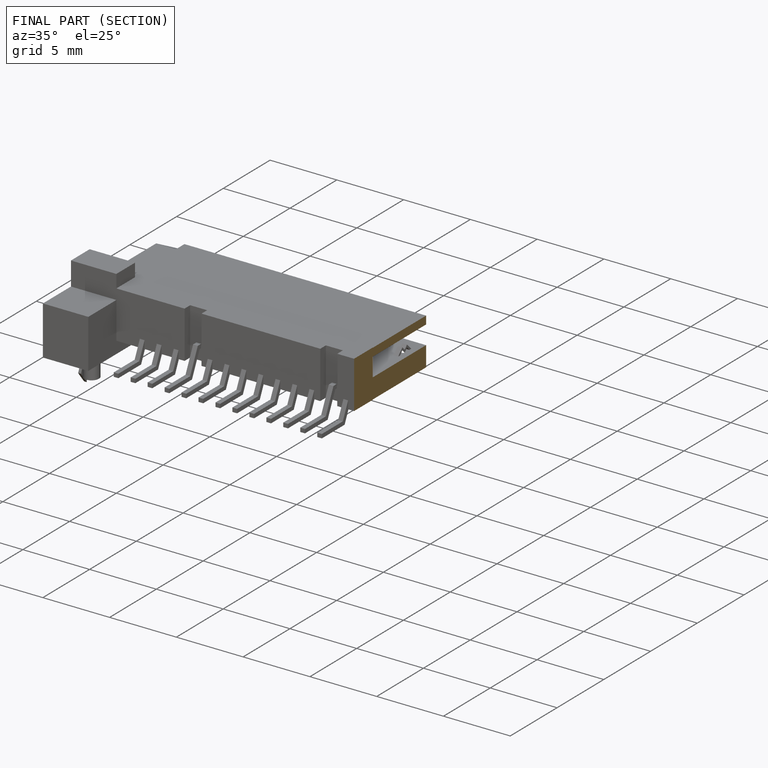
[diagram: finished part — half-section view (interior)]
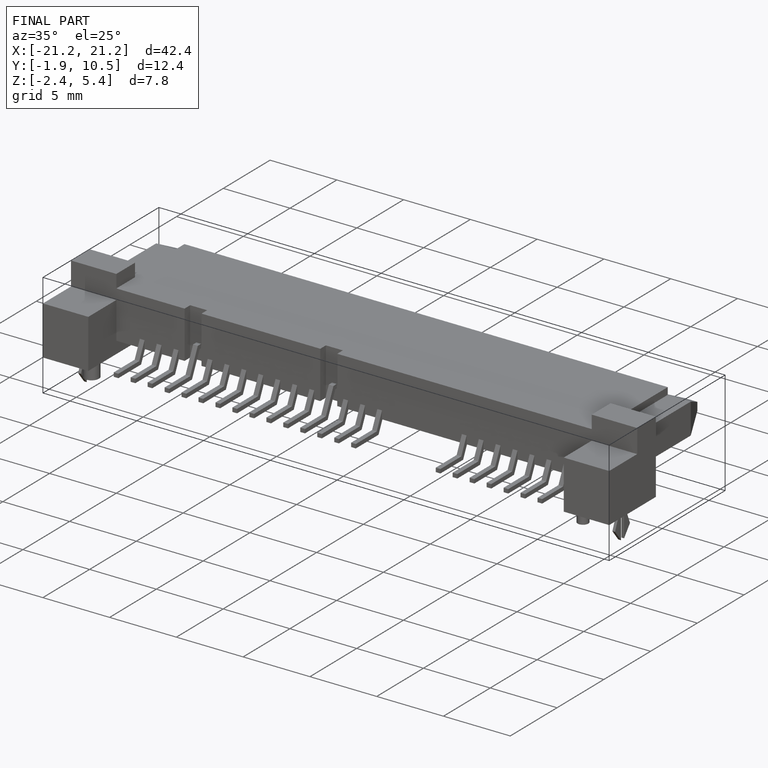
[diagram: finished part — iso view with bounding-box wireframe]
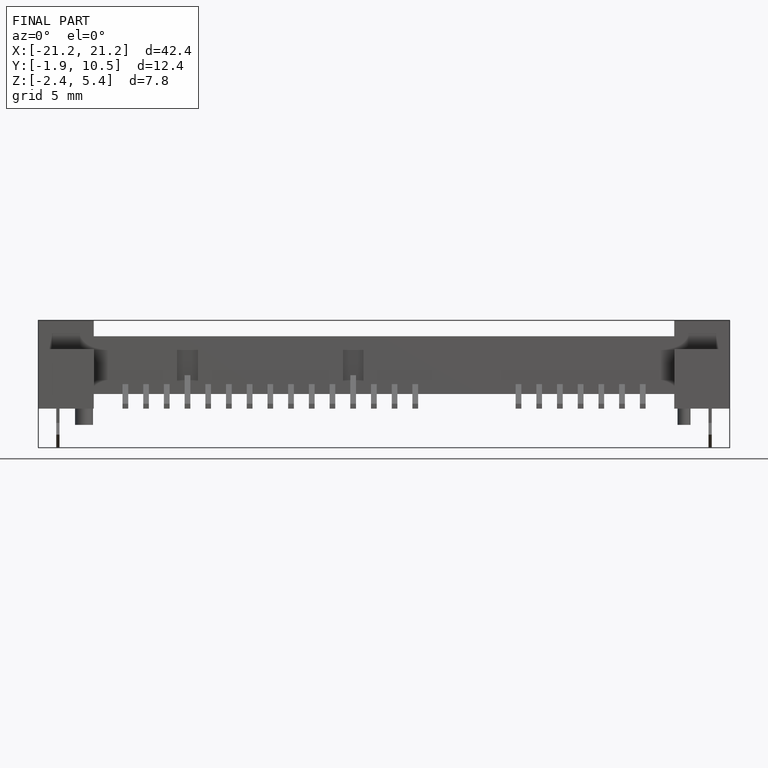
[diagram: finished part — front view with bounding-box wireframe]
